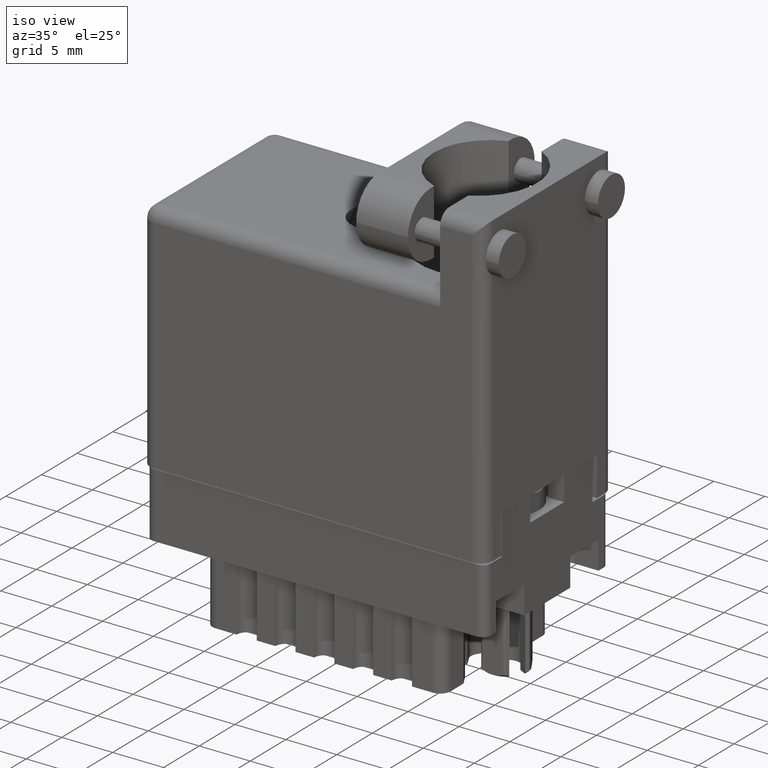
[diagram: clean part render]
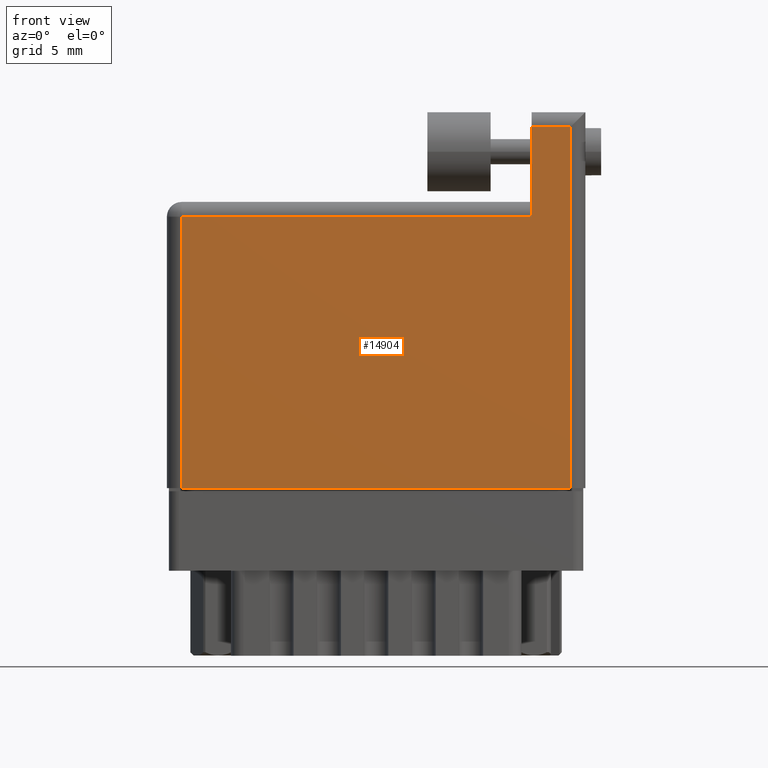
[diagram: tour spotlight — one face highlighted and labeled with its STEP entity id]
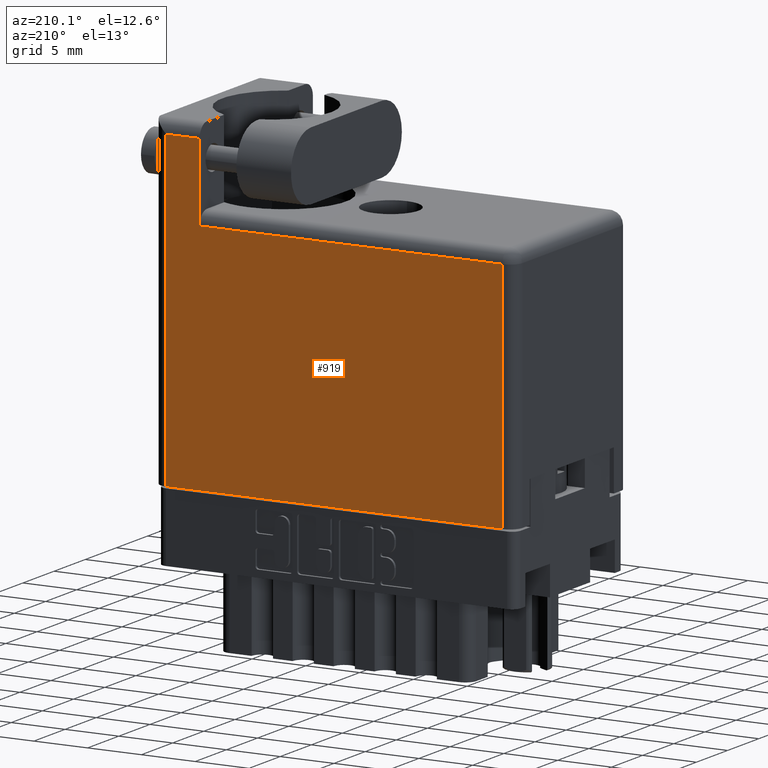
[diagram: tour spotlight — one face highlighted and labeled with its STEP entity id]
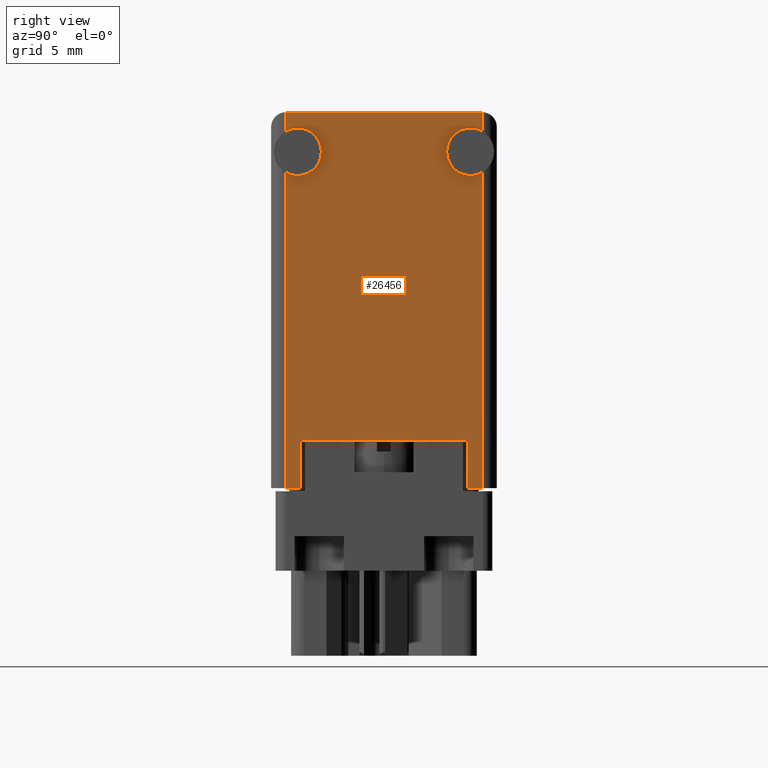
[diagram: tour spotlight — one face highlighted and labeled with its STEP entity id]
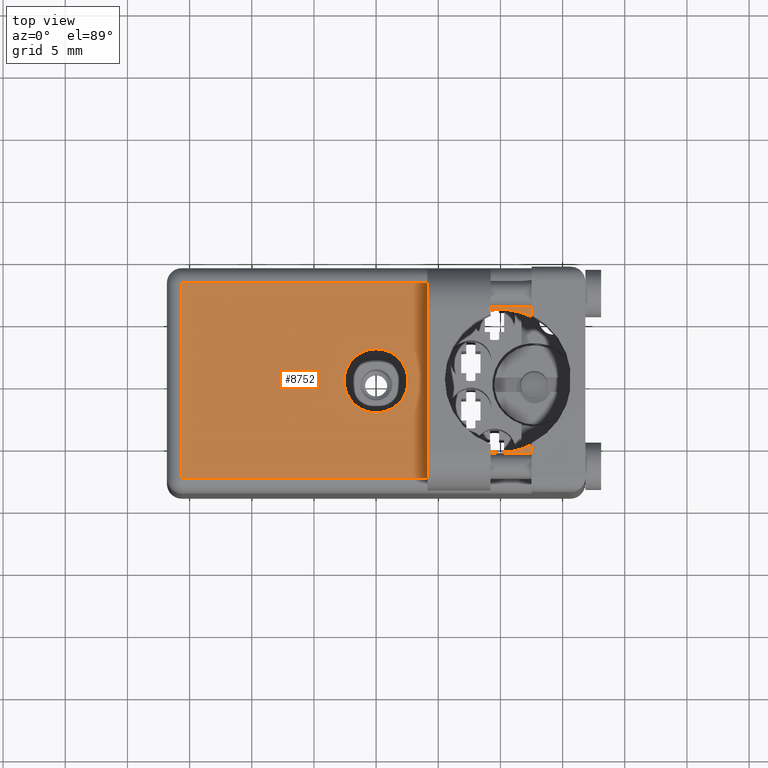
[diagram: tour spotlight — one face highlighted and labeled with its STEP entity id]
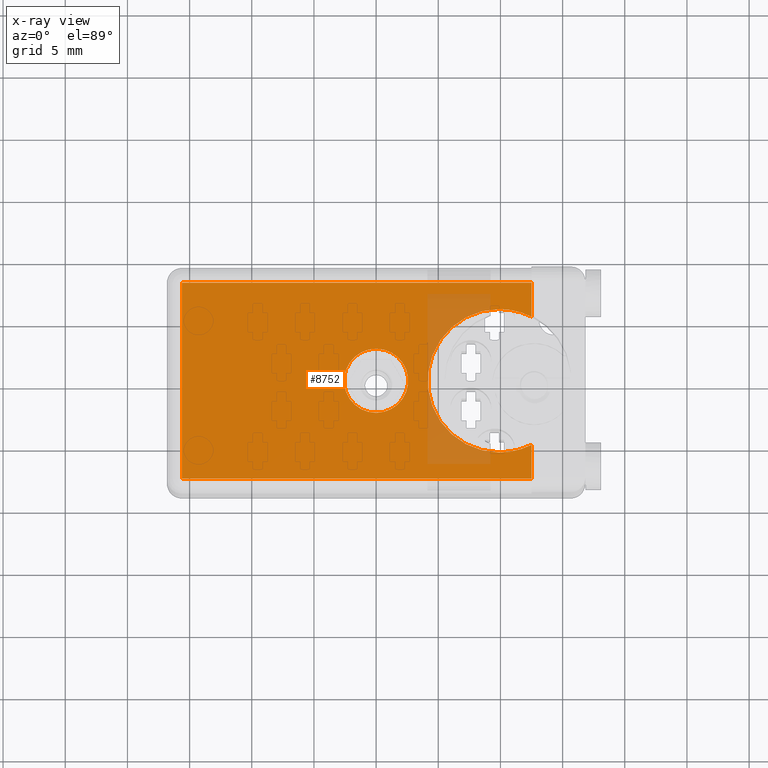
[diagram: x-ray of the same camera — body ghosted, this tour face saturated]
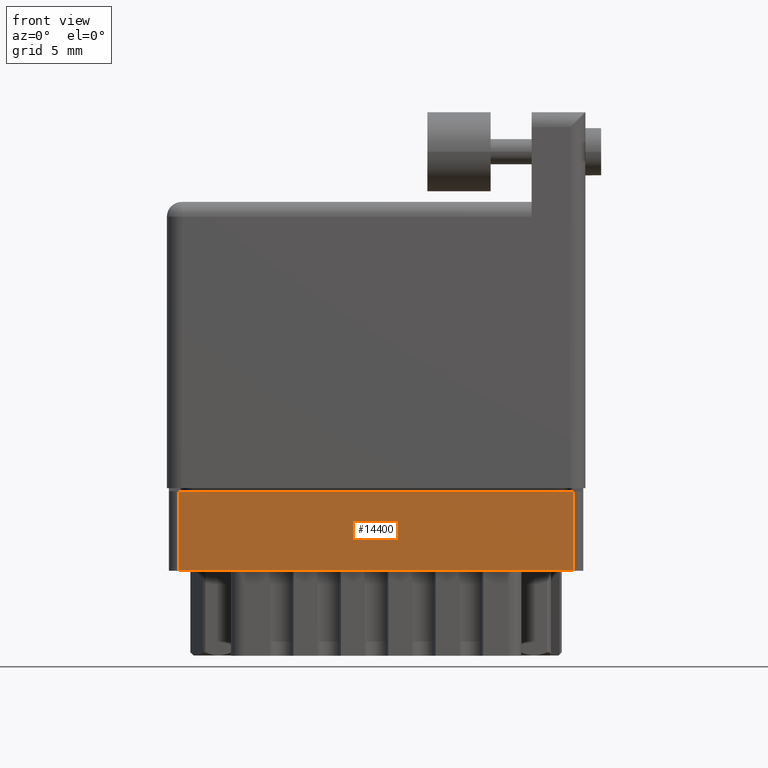
[diagram: tour spotlight — one face highlighted and labeled with its STEP entity id]
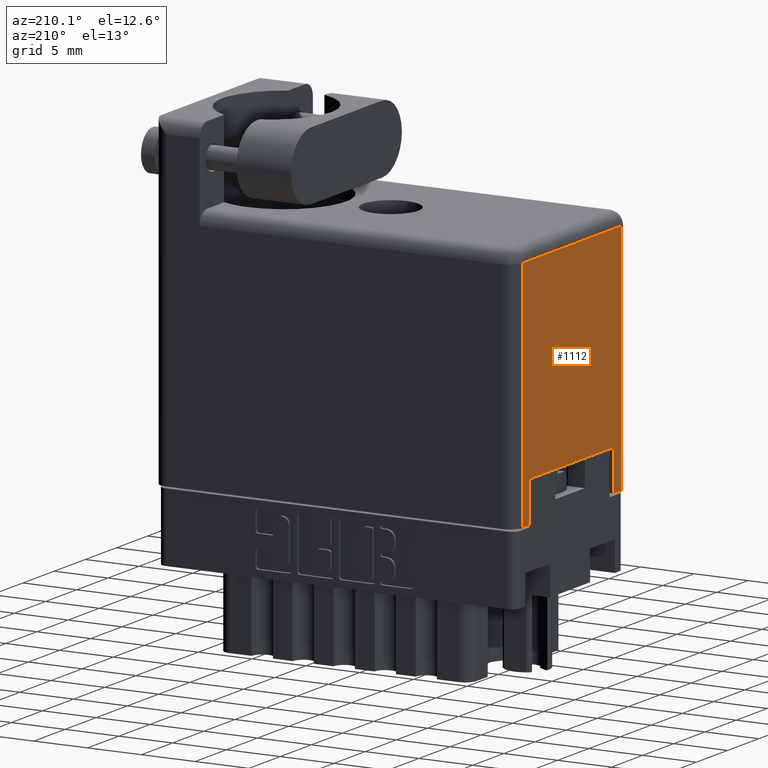
[diagram: tour spotlight — one face highlighted and labeled with its STEP entity id]
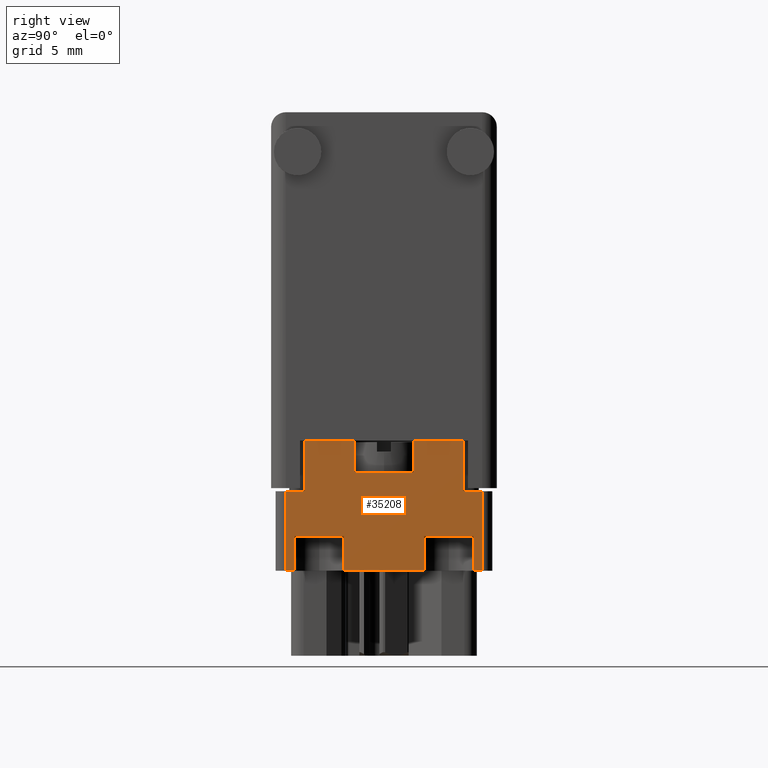
[diagram: tour spotlight — one face highlighted and labeled with its STEP entity id]
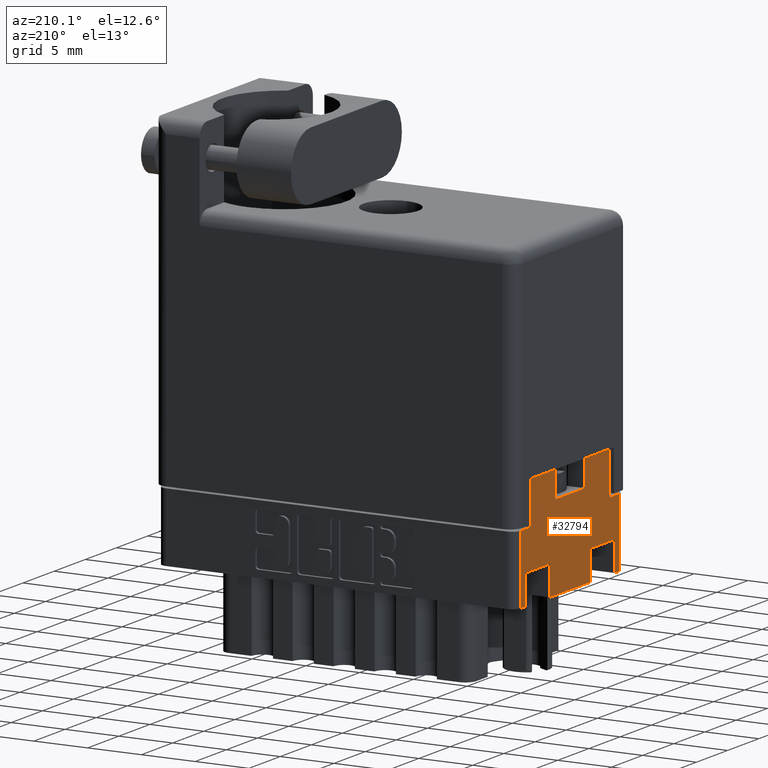
[diagram: tour spotlight — one face highlighted and labeled with its STEP entity id]
A machine part: a face-by-face anatomy tour. The part has 900 B-rep faces; the first image is the clean iso view, then the 8 largest visible faces are spotlighted one at a time (largest first), each with its STEP entity span.

Face 1 — front view, entity #14904. In plain terms, the highlighted planar face has unit normal (0, 1, -0).
Definition (entity closure, byte-faithful):
#64 = CARTESIAN_POINT ( 'NONE',  ( 0.0000000000000000000, 0.0000000000000000000, 0.0000000000000000000 ) ) ;
#103 = DIRECTION ( 'NONE',  ( 0.0000000000000000000, -1.000000000000000000, 0.0000000000000000000 ) ) ;
#1567 = CARTESIAN_POINT ( 'NONE',  ( 0.04700000000000006900, 0.0000000000000000000, 0.0000000000000000000 ) ) ;
#2125 = ORIENTED_EDGE ( 'NONE', *, *, #13101, .T. ) ;
#3009 = CARTESIAN_POINT ( 'NONE',  ( 1.155000000000000000, 1.189999999999999700, 6.829619984160658000E-017 ) ) ;
#3649 = VECTOR ( 'NONE', #11735, 39.37007874015748100 ) ;
#4244 = DIRECTION ( 'NONE',  ( -1.000000000000000000, 0.0000000000000000000, 0.0000000000000000000 ) ) ;
#4473 = VECTOR ( 'NONE', #22495, 39.37007874015748100 ) ;
#5046 = FACE_OUTER_BOUND ( 'NONE', #27770, .T. ) ;
#5056 = EDGE_CURVE ( 'NONE', #27941, #24178, #24931, .T. ) ;
#7647 = LINE ( 'NONE', #26916, #21984 ) ;
#8137 = CARTESIAN_POINT ( 'NONE',  ( 0.0000000000000000000, 0.9059999999999996900, 0.0000000000000000000 ) ) ;
#8495 = CARTESIAN_POINT ( 'NONE',  ( 1.277999999999999800, 1.189999999999999700, 0.0000000000000000000 ) ) ;
#9702 = ORIENTED_EDGE ( 'NONE', *, *, #5056, .T. ) ;
#11204 = ORIENTED_EDGE ( 'NONE', *, *, #25216, .T. ) ;
#11735 = DIRECTION ( 'NONE',  ( 0.0000000000000000000, 1.000000000000000000, 0.0000000000000000000 ) ) ;
#12269 = ORIENTED_EDGE ( 'NONE', *, *, #16501, .T. ) ;
#12934 = ORIENTED_EDGE ( 'NONE', *, *, #27459, .T. ) ;
#13092 = PLANE ( 'NONE',  #16830 ) ;
#13101 = EDGE_CURVE ( 'NONE', #27076, #27487, #22868, .T. ) ;
#14904 = ADVANCED_FACE ( 'NONE', ( #5046 ), #13092, .F. ) ;
#14937 = VECTOR ( 'NONE', #20998, 39.37007874015748100 ) ;
#16501 = EDGE_CURVE ( 'NONE', #24178, #27076, #19661, .T. ) ;
#16830 = AXIS2_PLACEMENT_3D ( 'NONE', #8137, #27766, #35904 ) ;
#17556 = CARTESIAN_POINT ( 'NONE',  ( 0.04700000000000006900, 0.0000000000000000000, 0.0000000000000000000 ) ) ;
#18659 = CARTESIAN_POINT ( 'NONE',  ( 0.04700000000000006900, 0.8590000000000001000, 0.0000000000000000000 ) ) ;
#19661 = LINE ( 'NONE', #19713, #4473 ) ;
#19670 = VECTOR ( 'NONE', #22270, 39.37007874015748100 ) ;
#19713 = CARTESIAN_POINT ( 'NONE',  ( 1.155000000000000000, 1.142999999999999600, 0.0000000000000000000 ) ) ;
#20998 = DIRECTION ( 'NONE',  ( 0.0000000000000000000, -1.000000000000000000, 0.0000000000000000000 ) ) ;
#21984 = VECTOR ( 'NONE', #4244, 39.37007874015748100 ) ;
#22033 = VECTOR ( 'NONE', #103, 39.37007874015748100 ) ;
#22270 = DIRECTION ( 'NONE',  ( 1.000000000000000000, 0.0000000000000000000, 0.0000000000000000000 ) ) ;
#22495 = DIRECTION ( 'NONE',  ( -1.000000000000000000, -0.0000000000000000000, -0.0000000000000000000 ) ) ;
#22868 = LINE ( 'NONE', #3009, #22033 ) ;
#23856 = CARTESIAN_POINT ( 'NONE',  ( 1.277999999999999800, 0.0000000000000000000, 0.0000000000000000000 ) ) ;
#24178 = VERTEX_POINT ( 'NONE', #28639 ) ;
#24498 = LINE ( 'NONE', #1567, #14937 ) ;
#24931 = LINE ( 'NONE', #8495, #3649 ) ;
#25216 = EDGE_CURVE ( 'NONE', #27869, #27941, #27063, .T. ) ;
#26321 = EDGE_CURVE ( 'NONE', #27487, #26717, #7647, .T. ) ;
#26717 = VERTEX_POINT ( 'NONE', #18659 ) ;
#26916 = CARTESIAN_POINT ( 'NONE',  ( 0.0000000000000000000, 0.8590000000000001000, 0.0000000000000000000 ) ) ;
#27063 = LINE ( 'NONE', #64, #19670 ) ;
#27076 = VERTEX_POINT ( 'NONE', #28544 ) ;
#27459 = EDGE_CURVE ( 'NONE', #26717, #27869, #24498, .T. ) ;
#27487 = VERTEX_POINT ( 'NONE', #31914 ) ;
#27766 = DIRECTION ( 'NONE',  ( 0.0000000000000000000, 0.0000000000000000000, -1.000000000000000000 ) ) ;
#27770 = EDGE_LOOP ( 'NONE', ( #11204, #9702, #12269, #2125, #28200, #12934 ) ) ;
#27869 = VERTEX_POINT ( 'NONE', #17556 ) ;
#27941 = VERTEX_POINT ( 'NONE', #23856 ) ;
#28200 = ORIENTED_EDGE ( 'NONE', *, *, #26321, .T. ) ;
#28544 = CARTESIAN_POINT ( 'NONE',  ( 1.155000000000000000, 1.142999999999999600, 6.829619984160658000E-017 ) ) ;
#28639 = CARTESIAN_POINT ( 'NONE',  ( 1.277999999999999800, 1.142999999999999600, 0.0000000000000000000 ) ) ;
#31914 = CARTESIAN_POINT ( 'NONE',  ( 1.155000000000000000, 0.8590000000000001000, 0.0000000000000000000 ) ) ;
#35904 = DIRECTION ( 'NONE',  ( -1.000000000000000000, 0.0000000000000000000, 0.0000000000000000000 ) ) ;

Face 2 — auxiliary view, entity #919. In plain terms, the highlighted planar face has unit normal (0, 1, -0).
Definition (entity closure, byte-faithful):
#100 = LINE ( 'NONE', #11593, #20940 ) ;
#919 = ADVANCED_FACE ( 'NONE', ( #17000 ), #1882, .T. ) ;
#1082 = AXIS2_PLACEMENT_3D ( 'NONE', #4688, #24078, #26872 ) ;
#1882 = PLANE ( 'NONE',  #1082 ) ;
#2681 = LINE ( 'NONE', #29164, #14822 ) ;
#2922 = EDGE_LOOP ( 'NONE', ( #7462, #30308, #18214, #9873, #7971, #24014 ) ) ;
#3687 = DIRECTION ( 'NONE',  ( -0.0000000000000000000, 1.000000000000000000, -0.0000000000000000000 ) ) ;
#4688 = CARTESIAN_POINT ( 'NONE',  ( 0.0000000000000000000, 0.9060000000000002500, -0.7150000000000001900 ) ) ;
#5653 = DIRECTION ( 'NONE',  ( 1.000000000000000000, -0.0000000000000000000, -0.0000000000000000000 ) ) ;
#5714 = LINE ( 'NONE', #11069, #19579 ) ;
#6447 = EDGE_CURVE ( 'NONE', #24117, #17199, #100, .T. ) ;
#6738 = EDGE_CURVE ( 'NONE', #29535, #19978, #2681, .T. ) ;
#7037 = VECTOR ( 'NONE', #25197, 39.37007874015748100 ) ;
#7113 = CARTESIAN_POINT ( 'NONE',  ( 1.277999999999999800, 3.209921392555509400E-015, -0.7149999999999999700 ) ) ;
#7462 = ORIENTED_EDGE ( 'NONE', *, *, #20479, .T. ) ;
#7971 = ORIENTED_EDGE ( 'NONE', *, *, #18040, .T. ) ;
#9067 = LINE ( 'NONE', #29814, #19461 ) ;
#9133 = VECTOR ( 'NONE', #5653, 39.37007874015748100 ) ;
#9873 = ORIENTED_EDGE ( 'NONE', *, *, #6447, .T. ) ;
#10081 = CARTESIAN_POINT ( 'NONE',  ( 1.277999999999999800, 1.143000000000000000, -0.7149999999999999700 ) ) ;
#11069 = CARTESIAN_POINT ( 'NONE',  ( 0.0000000000000000000, 3.209921392555509400E-015, -0.7149999999999999700 ) ) ;
#11593 = CARTESIAN_POINT ( 'NONE',  ( 0.04700000000000006900, 0.9060000000000002500, -0.7150000000000001900 ) ) ;
#13833 = DIRECTION ( 'NONE',  ( 1.000000000000000000, 0.0000000000000000000, 0.0000000000000000000 ) ) ;
#14822 = VECTOR ( 'NONE', #29036, 39.37007874015748100 ) ;
#14827 = LINE ( 'NONE', #33798, #7037 ) ;
#17000 = FACE_OUTER_BOUND ( 'NONE', #2922, .T. ) ;
#17199 = VERTEX_POINT ( 'NONE', #27776 ) ;
#18040 = EDGE_CURVE ( 'NONE', #17199, #25603, #14827, .T. ) ;
#18214 = ORIENTED_EDGE ( 'NONE', *, *, #30649, .F. ) ;
#18260 = LINE ( 'NONE', #25406, #9133 ) ;
#19461 = VECTOR ( 'NONE', #35290, 39.37007874015748100 ) ;
#19579 = VECTOR ( 'NONE', #13833, 39.37007874015748100 ) ;
#19799 = CARTESIAN_POINT ( 'NONE',  ( 0.04700000000000006900, 3.209921392555509400E-015, -0.7149999999999999700 ) ) ;
#19978 = VERTEX_POINT ( 'NONE', #7113 ) ;
#20479 = EDGE_CURVE ( 'NONE', #25936, #29535, #18260, .T. ) ;
#20940 = VECTOR ( 'NONE', #3687, 39.37007874015748100 ) ;
#24014 = ORIENTED_EDGE ( 'NONE', *, *, #35898, .F. ) ;
#24078 = DIRECTION ( 'NONE',  ( 0.0000000000000000000, 0.0000000000000000000, -1.000000000000000000 ) ) ;
#24117 = VERTEX_POINT ( 'NONE', #19799 ) ;
#25197 = DIRECTION ( 'NONE',  ( 1.000000000000000000, -0.0000000000000000000, -0.0000000000000000000 ) ) ;
#25406 = CARTESIAN_POINT ( 'NONE',  ( 0.0000000000000000000, 1.143000000000000000, -0.7149999999999999700 ) ) ;
#25603 = VERTEX_POINT ( 'NONE', #30245 ) ;
#25936 = VERTEX_POINT ( 'NONE', #30196 ) ;
#26872 = DIRECTION ( 'NONE',  ( -1.000000000000000000, 0.0000000000000000000, 0.0000000000000000000 ) ) ;
#27776 = CARTESIAN_POINT ( 'NONE',  ( 0.04700000000000006900, 0.8590000000000001000, -0.7150000000000001900 ) ) ;
#29036 = DIRECTION ( 'NONE',  ( -0.0000000000000000000, -1.000000000000000000, -0.0000000000000000000 ) ) ;
#29164 = CARTESIAN_POINT ( 'NONE',  ( 1.277999999999999800, 0.9060000000000002500, -0.7150000000000001900 ) ) ;
#29535 = VERTEX_POINT ( 'NONE', #10081 ) ;
#29814 = CARTESIAN_POINT ( 'NONE',  ( 1.155000000000000000, 1.189999999999999900, -0.7150000000000001900 ) ) ;
#30196 = CARTESIAN_POINT ( 'NONE',  ( 1.155000000000000000, 1.143000000000000000, -0.7150000000000001900 ) ) ;
#30245 = CARTESIAN_POINT ( 'NONE',  ( 1.155000000000000000, 0.8590000000000001000, -0.7150000000000001900 ) ) ;
#30308 = ORIENTED_EDGE ( 'NONE', *, *, #6738, .T. ) ;
#30649 = EDGE_CURVE ( 'NONE', #24117, #19978, #5714, .T. ) ;
#33798 = CARTESIAN_POINT ( 'NONE',  ( 0.0000000000000000000, 0.8590000000000001000, -0.7150000000000001900 ) ) ;
#35290 = DIRECTION ( 'NONE',  ( 0.0000000000000000000, -1.000000000000000000, 0.0000000000000000000 ) ) ;
#35898 = EDGE_CURVE ( 'NONE', #25936, #25603, #9067, .T. ) ;

Face 3 — right view, entity #26456. In plain terms, the highlighted planar face has unit normal (1, 0, 0).
Definition (entity closure, byte-faithful):
#215 = CIRCLE ( 'NONE', #29292, 0.07499999999999998300 ) ;
#267 = CARTESIAN_POINT ( 'NONE',  ( 1.325000000000000000, 3.209921392555509400E-015, -0.7149999999999999700 ) ) ;
#514 = EDGE_CURVE ( 'NONE', #26234, #8588, #27009, .T. ) ;
#570 = DIRECTION ( 'NONE',  ( 0.0000000000000000000, 0.0000000000000000000, -1.000000000000000000 ) ) ;
#651 = DIRECTION ( 'NONE',  ( 0.0000000000000000000, 1.000000000000000000, 0.0000000000000000000 ) ) ;
#731 = CARTESIAN_POINT ( 'NONE',  ( 1.325000000000000000, 3.209921392555509400E-015, -0.04700000000000000700 ) ) ;
#985 = AXIS2_PLACEMENT_3D ( 'NONE', #32879, #21716, #10329 ) ;
#1188 = EDGE_CURVE ( 'NONE', #28285, #12013, #22194, .T. ) ;
#1308 = VERTEX_POINT ( 'NONE', #10391 ) ;
#1706 = VECTOR ( 'NONE', #18977, 39.37007874015748100 ) ;
#1830 = CARTESIAN_POINT ( 'NONE',  ( 1.325000000000000000, 0.1500000000000016000, -0.09200000000000013700 ) ) ;
#2227 = CARTESIAN_POINT ( 'NONE',  ( 1.325000000000000000, 0.0000000000000000000, -0.6680000000000000400 ) ) ;
#2542 = LINE ( 'NONE', #1830, #35960 ) ;
#2779 = VERTEX_POINT ( 'NONE', #8423 ) ;
#3173 = ORIENTED_EDGE ( 'NONE', *, *, #10742, .F. ) ;
#3395 = VECTOR ( 'NONE', #16362, 39.37007874015748100 ) ;
#3725 = FACE_OUTER_BOUND ( 'NONE', #14104, .T. ) ;
#4551 = CARTESIAN_POINT ( 'NONE',  ( 1.325000000000000000, 3.209921392555509400E-015, -0.7149999999999999700 ) ) ;
#4677 = DIRECTION ( 'NONE',  ( 0.0000000000000000000, 0.0000000000000000000, 1.000000000000000000 ) ) ;
#4801 = DIRECTION ( 'NONE',  ( -0.0000000000000000000, -1.000000000000000000, -0.0000000000000000000 ) ) ;
#4878 = CARTESIAN_POINT ( 'NONE',  ( 1.325000000000000000, 1.189999999999999700, 0.0000000000000000000 ) ) ;
#5701 = DIRECTION ( 'NONE',  ( 1.000000000000000000, 0.0000000000000000000, 0.0000000000000000000 ) ) ;
#5812 = CARTESIAN_POINT ( 'NONE',  ( 1.325000000000000000, 1.064999999999999700, -0.5560000000000001600 ) ) ;
#6843 = CARTESIAN_POINT ( 'NONE',  ( 1.325000000000000000, 3.209921392555509400E-015, -0.04700000000000000700 ) ) ;
#6871 = EDGE_CURVE ( 'NONE', #17466, #28005, #16984, .T. ) ;
#7004 = CARTESIAN_POINT ( 'NONE',  ( 1.325000000000000000, 3.209921392555509400E-015, -0.04699999999999993800 ) ) ;
#7346 = ORIENTED_EDGE ( 'NONE', *, *, #12712, .T. ) ;
#7535 = DIRECTION ( 'NONE',  ( 0.0000000000000000000, 1.000000000000000000, 0.0000000000000000000 ) ) ;
#8195 = ORIENTED_EDGE ( 'NONE', *, *, #27594, .F. ) ;
#8423 = CARTESIAN_POINT ( 'NONE',  ( 1.325000000000000000, 3.209921392555509400E-015, -0.6230000000000000000 ) ) ;
#8556 = CARTESIAN_POINT ( 'NONE',  ( 1.325000000000000000, 3.209921392555509400E-015, -0.7149999999999999700 ) ) ;
#8588 = VERTEX_POINT ( 'NONE', #35824 ) ;
#8684 = LINE ( 'NONE', #2227, #1706 ) ;
#8833 = VECTOR ( 'NONE', #25894, 39.37007874015748100 ) ;
#9020 = DIRECTION ( 'NONE',  ( 0.0000000000000000000, 0.0000000000000000000, 1.000000000000000000 ) ) ;
#9395 = VERTEX_POINT ( 'NONE', #9610 ) ;
#9610 = CARTESIAN_POINT ( 'NONE',  ( 1.325000000000000000, 0.1500000000000016000, -0.6230000000000000000 ) ) ;
#10084 = VECTOR ( 'NONE', #4677, 39.37007874015748100 ) ;
#10329 = DIRECTION ( 'NONE',  ( 0.0000000000000000000, 0.0000000000000000000, -1.000000000000000000 ) ) ;
#10391 = CARTESIAN_POINT ( 'NONE',  ( 1.325000000000000000, 0.1500000000000016000, -0.09200000000000013700 ) ) ;
#10742 = EDGE_CURVE ( 'NONE', #29784, #8588, #33008, .T. ) ;
#11104 = ORIENTED_EDGE ( 'NONE', *, *, #514, .T. ) ;
#11117 = CARTESIAN_POINT ( 'NONE',  ( 1.325000000000000000, 1.189999999999999900, -0.6680000000000000400 ) ) ;
#12013 = VERTEX_POINT ( 'NONE', #19819 ) ;
#12293 = CARTESIAN_POINT ( 'NONE',  ( 1.325000000000000000, 0.1500000000000016000, -0.6230000000000000000 ) ) ;
#12585 = CARTESIAN_POINT ( 'NONE',  ( 1.325000000000000000, 0.0000000000000000000, -0.09200000000000013700 ) ) ;
#12712 = EDGE_CURVE ( 'NONE', #17466, #1308, #2542, .T. ) ;
#12871 = ORIENTED_EDGE ( 'NONE', *, *, #16463, .T. ) ;
#13415 = CARTESIAN_POINT ( 'NONE',  ( 1.325000000000000000, 0.9997619742787992000, -0.04700000000000000700 ) ) ;
#13650 = CARTESIAN_POINT ( 'NONE',  ( 1.325000000000000000, 1.064999999999999900, -0.1589999999999998400 ) ) ;
#14104 = EDGE_LOOP ( 'NONE', ( #11104, #3173, #8195, #29783, #24768, #30576, #33655, #16055, #26388, #15778, #7346, #12871, #20123, #28339 ) ) ;
#14408 = DIRECTION ( 'NONE',  ( 1.000000000000000000, 0.0000000000000000000, 0.0000000000000000000 ) ) ;
#15778 = ORIENTED_EDGE ( 'NONE', *, *, #6871, .F. ) ;
#16055 = ORIENTED_EDGE ( 'NONE', *, *, #23891, .F. ) ;
#16362 = DIRECTION ( 'NONE',  ( 0.0000000000000000000, 0.0000000000000000000, -1.000000000000000000 ) ) ;
#16463 = EDGE_CURVE ( 'NONE', #1308, #9395, #20068, .T. ) ;
#16614 = EDGE_CURVE ( 'NONE', #17834, #28005, #21417, .T. ) ;
#16920 = CARTESIAN_POINT ( 'NONE',  ( 1.325000000000000000, 0.1500000000000016000, -0.6230000000000000000 ) ) ;
#16955 = CARTESIAN_POINT ( 'NONE',  ( 1.325000000000000000, 1.064999999999999900, -0.08399999999999983900 ) ) ;
#16984 = LINE ( 'NONE', #4551, #10084 ) ;
#17466 = VERTEX_POINT ( 'NONE', #12585 ) ;
#17834 = VERTEX_POINT ( 'NONE', #13415 ) ;
#18977 = DIRECTION ( 'NONE',  ( 0.0000000000000000000, 1.000000000000000000, 0.0000000000000000000 ) ) ;
#19099 = DIRECTION ( 'NONE',  ( 1.000000000000000000, 0.0000000000000000000, 0.0000000000000000000 ) ) ;
#19746 = VECTOR ( 'NONE', #9020, 39.37007874015748100 ) ;
#19819 = CARTESIAN_POINT ( 'NONE',  ( 1.325000000000000000, 1.130238025721200100, -0.04700000000000000700 ) ) ;
#20068 = LINE ( 'NONE', #16920, #27052 ) ;
#20123 = ORIENTED_EDGE ( 'NONE', *, *, #28563, .T. ) ;
#20368 = CARTESIAN_POINT ( 'NONE',  ( 1.325000000000000000, 0.0000000000000000000, -0.6680000000000000400 ) ) ;
#20815 = CARTESIAN_POINT ( 'NONE',  ( 1.325000000000000000, 1.064999999999999900, -0.08399999999999983900 ) ) ;
#21417 = LINE ( 'NONE', #731, #31820 ) ;
#21716 = DIRECTION ( 'NONE',  ( 1.000000000000000000, 0.0000000000000000000, 0.0000000000000000000 ) ) ;
#21887 = CIRCLE ( 'NONE', #985, 0.07500000000000002500 ) ;
#22194 = CIRCLE ( 'NONE', #23399, 0.07499999999999998300 ) ;
#22891 = CARTESIAN_POINT ( 'NONE',  ( 1.325000000000000000, 1.189999999999999700, -0.04699999999999993800 ) ) ;
#23399 = AXIS2_PLACEMENT_3D ( 'NONE', #20815, #32089, #31972 ) ;
#23891 = EDGE_CURVE ( 'NONE', #17834, #28285, #215, .T. ) ;
#24041 = EDGE_CURVE ( 'NONE', #26234, #2779, #26685, .T. ) ;
#24269 = LINE ( 'NONE', #4878, #3395 ) ;
#24768 = ORIENTED_EDGE ( 'NONE', *, *, #35434, .F. ) ;
#25039 = DIRECTION ( 'NONE',  ( 0.0000000000000000000, 0.0000000000000000000, -1.000000000000000000 ) ) ;
#25163 = PLANE ( 'NONE',  #32380 ) ;
#25222 = DIRECTION ( 'NONE',  ( 0.0000000000000000000, 0.0000000000000000000, -1.000000000000000000 ) ) ;
#25356 = CARTESIAN_POINT ( 'NONE',  ( 1.325000000000000000, 1.064999999999999700, -0.6310000000000002300 ) ) ;
#25504 = AXIS2_PLACEMENT_3D ( 'NONE', #25356, #14408, #570 ) ;
#25894 = DIRECTION ( 'NONE',  ( 0.0000000000000000000, -1.000000000000000000, 0.0000000000000000000 ) ) ;
#26008 = VERTEX_POINT ( 'NONE', #22891 ) ;
#26234 = VERTEX_POINT ( 'NONE', #20368 ) ;
#26388 = ORIENTED_EDGE ( 'NONE', *, *, #16614, .T. ) ;
#26456 = ADVANCED_FACE ( 'NONE', ( #3725 ), #25163, .T. ) ;
#26685 = LINE ( 'NONE', #267, #19746 ) ;
#26999 = VERTEX_POINT ( 'NONE', #11117 ) ;
#27009 = LINE ( 'NONE', #28439, #34382 ) ;
#27052 = VECTOR ( 'NONE', #28309, 39.37007874015748100 ) ;
#27483 = VECTOR ( 'NONE', #4801, 39.37007874015748100 ) ;
#27594 = EDGE_CURVE ( 'NONE', #30206, #29784, #21887, .T. ) ;
#27892 = LINE ( 'NONE', #12293, #8833 ) ;
#28005 = VERTEX_POINT ( 'NONE', #7004 ) ;
#28285 = VERTEX_POINT ( 'NONE', #13650 ) ;
#28309 = DIRECTION ( 'NONE',  ( 0.0000000000000000000, 0.0000000000000000000, -1.000000000000000000 ) ) ;
#28339 = ORIENTED_EDGE ( 'NONE', *, *, #24041, .F. ) ;
#28439 = CARTESIAN_POINT ( 'NONE',  ( 1.325000000000000000, 0.0000000000000000000, -0.6680000000000000400 ) ) ;
#28563 = EDGE_CURVE ( 'NONE', #9395, #2779, #27892, .T. ) ;
#28715 = EDGE_CURVE ( 'NONE', #26008, #12013, #34881, .T. ) ;
#29292 = AXIS2_PLACEMENT_3D ( 'NONE', #16955, #5701, #25222 ) ;
#29783 = ORIENTED_EDGE ( 'NONE', *, *, #35120, .T. ) ;
#29784 = VERTEX_POINT ( 'NONE', #5812 ) ;
#30206 = VERTEX_POINT ( 'NONE', #31579 ) ;
#30460 = DIRECTION ( 'NONE',  ( -0.0000000000000000000, -1.000000000000000000, -0.0000000000000000000 ) ) ;
#30576 = ORIENTED_EDGE ( 'NONE', *, *, #28715, .T. ) ;
#31579 = CARTESIAN_POINT ( 'NONE',  ( 1.325000000000000000, 1.130238025721200400, -0.6680000000000000400 ) ) ;
#31820 = VECTOR ( 'NONE', #30460, 39.37007874015748100 ) ;
#31972 = DIRECTION ( 'NONE',  ( 0.0000000000000000000, 0.0000000000000000000, -1.000000000000000000 ) ) ;
#32089 = DIRECTION ( 'NONE',  ( 1.000000000000000000, 0.0000000000000000000, 0.0000000000000000000 ) ) ;
#32380 = AXIS2_PLACEMENT_3D ( 'NONE', #8556, #19099, #25039 ) ;
#32879 = CARTESIAN_POINT ( 'NONE',  ( 1.325000000000000000, 1.064999999999999700, -0.6310000000000002300 ) ) ;
#33008 = CIRCLE ( 'NONE', #25504, 0.07500000000000002500 ) ;
#33655 = ORIENTED_EDGE ( 'NONE', *, *, #1188, .F. ) ;
#34382 = VECTOR ( 'NONE', #651, 39.37007874015748100 ) ;
#34881 = LINE ( 'NONE', #6843, #27483 ) ;
#35120 = EDGE_CURVE ( 'NONE', #30206, #26999, #8684, .T. ) ;
#35434 = EDGE_CURVE ( 'NONE', #26008, #26999, #24269, .T. ) ;
#35824 = CARTESIAN_POINT ( 'NONE',  ( 1.325000000000000000, 0.9997619742787995400, -0.6680000000000000400 ) ) ;
#35960 = VECTOR ( 'NONE', #7535, 39.37007874015748100 ) ;

Face 4 — top view, entity #8752. An x-ray twin of the same camera follows (body ghosted, this face saturated) — the face is partly hidden behind the body. In plain terms, the highlighted planar face has unit normal (0, 0, 1).
Definition (entity closure, byte-faithful):
#126 = LINE ( 'NONE', #30103, #28766 ) ;
#1007 = EDGE_CURVE ( 'NONE', #30003, #33445, #21755, .T. ) ;
#1283 = ORIENTED_EDGE ( 'NONE', *, *, #5355, .F. ) ;
#1852 = ORIENTED_EDGE ( 'NONE', *, *, #16594, .F. ) ;
#1897 = ORIENTED_EDGE ( 'NONE', *, *, #30353, .F. ) ;
#2376 = DIRECTION ( 'NONE',  ( 0.0000000000000000000, 1.000000000000000000, 0.0000000000000000000 ) ) ;
#2491 = AXIS2_PLACEMENT_3D ( 'NONE', #10734, #11328, #33528 ) ;
#2797 = EDGE_LOOP ( 'NONE', ( #1852, #34831, #13339, #8393, #32783, #13409, #13379, #34064 ) ) ;
#3066 = LINE ( 'NONE', #32992, #35230 ) ;
#3554 = VERTEX_POINT ( 'NONE', #9099 ) ;
#4318 = VERTEX_POINT ( 'NONE', #22581 ) ;
#5133 = VERTEX_POINT ( 'NONE', #19744 ) ;
#5355 = EDGE_CURVE ( 'NONE', #15288, #13515, #28353, .T. ) ;
#5797 = EDGE_CURVE ( 'NONE', #33684, #5133, #10568, .T. ) ;
#5862 = DIRECTION ( 'NONE',  ( 0.0000000000000000000, 1.000000000000000000, 0.0000000000000000000 ) ) ;
#7277 = CARTESIAN_POINT ( 'NONE',  ( 1.155000000000000000, 0.9059999999999996900, -0.04700000000000000700 ) ) ;
#8393 = ORIENTED_EDGE ( 'NONE', *, *, #22835, .T. ) ;
#8752 = ADVANCED_FACE ( 'NONE', ( #13292, #24159 ), #11195, .T. ) ;
#8915 = DIRECTION ( 'NONE',  ( 0.0000000000000000000, 1.000000000000000000, 0.0000000000000000000 ) ) ;
#9099 = CARTESIAN_POINT ( 'NONE',  ( 0.04700000000000006900, 0.9059999999999996900, -0.04700000000000000700 ) ) ;
#9232 = CARTESIAN_POINT ( 'NONE',  ( 0.0000000000000000000, 0.9060000000000002500, -0.6680000000000000400 ) ) ;
#9724 = EDGE_CURVE ( 'NONE', #11136, #3554, #3066, .T. ) ;
#9999 = EDGE_CURVE ( 'NONE', #33445, #4318, #10931, .T. ) ;
#10312 = LINE ( 'NONE', #7277, #16336 ) ;
#10568 = CIRCLE ( 'NONE', #16075, 0.2270000000000000100 ) ;
#10734 = CARTESIAN_POINT ( 'NONE',  ( 1.052999999999999900, 0.9059999999999998100, -0.3574999999999999800 ) ) ;
#10931 = LINE ( 'NONE', #19964, #24361 ) ;
#11049 = AXIS2_PLACEMENT_3D ( 'NONE', #16997, #5862, #25150 ) ;
#11136 = VERTEX_POINT ( 'NONE', #24975 ) ;
#11195 = PLANE ( 'NONE',  #11049 ) ;
#11328 = DIRECTION ( 'NONE',  ( 0.0000000000000000000, 1.000000000000000000, 0.0000000000000000000 ) ) ;
#12009 = DIRECTION ( 'NONE',  ( -1.000000000000000000, 0.0000000000000000000, 0.0000000000000000000 ) ) ;
#13120 = CARTESIAN_POINT ( 'NONE',  ( 0.6624999999999999800, 0.9059999999999998100, -0.3574999999999999800 ) ) ;
#13292 = FACE_OUTER_BOUND ( 'NONE', #2797, .T. ) ;
#13339 = ORIENTED_EDGE ( 'NONE', *, *, #9724, .T. ) ;
#13359 = DIRECTION ( 'NONE',  ( 0.0000000000000000000, 0.0000000000000000000, 1.000000000000000000 ) ) ;
#13379 = ORIENTED_EDGE ( 'NONE', *, *, #21588, .F. ) ;
#13409 = ORIENTED_EDGE ( 'NONE', *, *, #1007, .F. ) ;
#13481 = DIRECTION ( 'NONE',  ( 0.0000000000000000000, 0.0000000000000000000, 1.000000000000000000 ) ) ;
#13505 = VECTOR ( 'NONE', #12009, 39.37007874015748100 ) ;
#13515 = VERTEX_POINT ( 'NONE', #29918 ) ;
#13790 = CARTESIAN_POINT ( 'NONE',  ( 1.155000000000000000, 0.9059999999999998100, -0.5602929979067323700 ) ) ;
#14498 = DIRECTION ( 'NONE',  ( 0.0000000000000000000, 0.0000000000000000000, 1.000000000000000000 ) ) ;
#15288 = VERTEX_POINT ( 'NONE', #25804 ) ;
#16075 = AXIS2_PLACEMENT_3D ( 'NONE', #28075, #8915, #28184 ) ;
#16336 = VECTOR ( 'NONE', #32635, 39.37007874015748100 ) ;
#16347 = DIRECTION ( 'NONE',  ( 0.0000000000000000000, 0.0000000000000000000, 1.000000000000000000 ) ) ;
#16594 = EDGE_CURVE ( 'NONE', #35368, #33684, #126, .T. ) ;
#16622 = AXIS2_PLACEMENT_3D ( 'NONE', #13120, #32435, #13359 ) ;
#16997 = CARTESIAN_POINT ( 'NONE',  ( 0.0000000000000000000, 0.9060000000000002500, -0.7150000000000001900 ) ) ;
#18042 = DIRECTION ( 'NONE',  ( 0.0000000000000000000, 1.000000000000000000, 0.0000000000000000000 ) ) ;
#18579 = EDGE_LOOP ( 'NONE', ( #1283, #1897 ) ) ;
#19146 = CARTESIAN_POINT ( 'NONE',  ( 1.155000000000000000, 0.9060000000000001400, -0.1547070020932643500 ) ) ;
#19744 = CARTESIAN_POINT ( 'NONE',  ( 1.052999999999999900, 0.9059999999999998100, -0.5845000000000000200 ) ) ;
#19964 = CARTESIAN_POINT ( 'NONE',  ( 1.155000000000000000, 0.9059999999999996900, 6.829619984160658000E-017 ) ) ;
#20915 = LINE ( 'NONE', #9232, #13505 ) ;
#21588 = EDGE_CURVE ( 'NONE', #5133, #30003, #34230, .T. ) ;
#21755 = CIRCLE ( 'NONE', #2491, 0.2270000000000000100 ) ;
#21803 = AXIS2_PLACEMENT_3D ( 'NONE', #30624, #2376, #35858 ) ;
#22581 = CARTESIAN_POINT ( 'NONE',  ( 1.155000000000000000, 0.9059999999999996900, -0.04700000000000000700 ) ) ;
#22835 = EDGE_CURVE ( 'NONE', #3554, #4318, #10312, .T. ) ;
#23041 = CIRCLE ( 'NONE', #16622, 0.1014999999999999900 ) ;
#23228 = AXIS2_PLACEMENT_3D ( 'NONE', #23975, #18042, #35045 ) ;
#23975 = CARTESIAN_POINT ( 'NONE',  ( 0.6624999999999999800, 0.9059999999999998100, -0.3574999999999999800 ) ) ;
#24020 = CARTESIAN_POINT ( 'NONE',  ( 1.155000000000000000, 0.9060000000000002500, -0.6680000000000000400 ) ) ;
#24159 = FACE_BOUND ( 'NONE', #18579, .T. ) ;
#24361 = VECTOR ( 'NONE', #14498, 39.37007874015748100 ) ;
#24975 = CARTESIAN_POINT ( 'NONE',  ( 0.04700000000000006900, 0.9060000000000002500, -0.6680000000000000400 ) ) ;
#25150 = DIRECTION ( 'NONE',  ( 0.0000000000000000000, 0.0000000000000000000, 1.000000000000000000 ) ) ;
#25804 = CARTESIAN_POINT ( 'NONE',  ( 0.6624999999999999800, 0.9059999999999998100, -0.2560000000000000100 ) ) ;
#28066 = CARTESIAN_POINT ( 'NONE',  ( 1.052999999999999900, 0.9059999999999998100, -0.1305000000000000000 ) ) ;
#28075 = CARTESIAN_POINT ( 'NONE',  ( 1.052999999999999900, 0.9059999999999998100, -0.3574999999999999800 ) ) ;
#28184 = DIRECTION ( 'NONE',  ( 0.0000000000000000000, 0.0000000000000000000, 1.000000000000000000 ) ) ;
#28353 = CIRCLE ( 'NONE', #23228, 0.1014999999999999900 ) ;
#28766 = VECTOR ( 'NONE', #13481, 39.37007874015748100 ) ;
#29426 = EDGE_CURVE ( 'NONE', #35368, #11136, #20915, .T. ) ;
#29918 = CARTESIAN_POINT ( 'NONE',  ( 0.6624999999999999800, 0.9059999999999998100, -0.4590000000000000200 ) ) ;
#30003 = VERTEX_POINT ( 'NONE', #28066 ) ;
#30103 = CARTESIAN_POINT ( 'NONE',  ( 1.155000000000000000, 0.9059999999999996900, 6.829619984160658000E-017 ) ) ;
#30353 = EDGE_CURVE ( 'NONE', #13515, #15288, #23041, .T. ) ;
#30624 = CARTESIAN_POINT ( 'NONE',  ( 1.052999999999999900, 0.9059999999999998100, -0.3574999999999999800 ) ) ;
#32435 = DIRECTION ( 'NONE',  ( 0.0000000000000000000, 1.000000000000000000, 0.0000000000000000000 ) ) ;
#32635 = DIRECTION ( 'NONE',  ( 1.000000000000000000, -0.0000000000000000000, -0.0000000000000000000 ) ) ;
#32783 = ORIENTED_EDGE ( 'NONE', *, *, #9999, .F. ) ;
#32992 = CARTESIAN_POINT ( 'NONE',  ( 0.04700000000000006900, 0.9060000000000002500, -0.7150000000000001900 ) ) ;
#33445 = VERTEX_POINT ( 'NONE', #19146 ) ;
#33528 = DIRECTION ( 'NONE',  ( 0.0000000000000000000, 0.0000000000000000000, 1.000000000000000000 ) ) ;
#33684 = VERTEX_POINT ( 'NONE', #13790 ) ;
#34064 = ORIENTED_EDGE ( 'NONE', *, *, #5797, .F. ) ;
#34230 = CIRCLE ( 'NONE', #21803, 0.2270000000000000100 ) ;
#34831 = ORIENTED_EDGE ( 'NONE', *, *, #29426, .T. ) ;
#35045 = DIRECTION ( 'NONE',  ( 0.0000000000000000000, 0.0000000000000000000, 1.000000000000000000 ) ) ;
#35230 = VECTOR ( 'NONE', #16347, 39.37007874015748100 ) ;
#35368 = VERTEX_POINT ( 'NONE', #24020 ) ;
#35858 = DIRECTION ( 'NONE',  ( 0.0000000000000000000, 0.0000000000000000000, 1.000000000000000000 ) ) ;

Face 5 — front view, entity #14400. In plain terms, the highlighted planar face has unit normal (0, -1, 0).
Definition (entity closure, byte-faithful):
#1115 = EDGE_LOOP ( 'NONE', ( #5393, #24775, #6668, #3140 ) ) ;
#1555 = FACE_OUTER_BOUND ( 'NONE', #1115, .T. ) ;
#2896 = LINE ( 'NONE', #31543, #17661 ) ;
#3140 = ORIENTED_EDGE ( 'NONE', *, *, #32876, .T. ) ;
#4957 = VERTEX_POINT ( 'NONE', #35788 ) ;
#5393 = ORIENTED_EDGE ( 'NONE', *, *, #34705, .F. ) ;
#6668 = ORIENTED_EDGE ( 'NONE', *, *, #10362, .F. ) ;
#8437 = CARTESIAN_POINT ( 'NONE',  ( 0.0000000000000000000, -0.3430000000000001400, -0.2770000000000000200 ) ) ;
#8670 = VERTEX_POINT ( 'NONE', #27333 ) ;
#9124 = LINE ( 'NONE', #8437, #34758 ) ;
#9264 = DIRECTION ( 'NONE',  ( -0.0000000000000000000, 0.0000000000000000000, 1.000000000000000000 ) ) ;
#10362 = EDGE_CURVE ( 'NONE', #4957, #21141, #26940, .T. ) ;
#11659 = DIRECTION ( 'NONE',  ( 0.0000000000000000000, -1.000000000000000000, 0.0000000000000000000 ) ) ;
#13499 = CARTESIAN_POINT ( 'NONE',  ( 0.0000000000000000000, -0.3430000000000001400, -0.5290000000000000300 ) ) ;
#14400 = ADVANCED_FACE ( 'NONE', ( #1555 ), #28383, .T. ) ;
#15541 = LINE ( 'NONE', #29021, #23790 ) ;
#15653 = VECTOR ( 'NONE', #32948, 39.37007874015748100 ) ;
#17231 = CARTESIAN_POINT ( 'NONE',  ( -0.6560000000000001400, -0.3430000000000001400, -0.7980000000000000400 ) ) ;
#17584 = DIRECTION ( 'NONE',  ( -0.0000000000000000000, -0.0000000000000000000, -1.000000000000000000 ) ) ;
#17661 = VECTOR ( 'NONE', #17584, 39.37007874015748100 ) ;
#19701 = VERTEX_POINT ( 'NONE', #19737 ) ;
#19737 = CARTESIAN_POINT ( 'NONE',  ( -0.6240000000000002200, -0.3430000000000001400, -0.2770000000000000200 ) ) ;
#21141 = VERTEX_POINT ( 'NONE', #31382 ) ;
#22580 = EDGE_CURVE ( 'NONE', #19701, #21141, #2896, .T. ) ;
#23790 = VECTOR ( 'NONE', #9264, 39.37007874015748100 ) ;
#24775 = ORIENTED_EDGE ( 'NONE', *, *, #22580, .T. ) ;
#26940 = LINE ( 'NONE', #13499, #15653 ) ;
#27333 = CARTESIAN_POINT ( 'NONE',  ( 0.6239999999999997800, -0.3430000000000001400, -0.2770000000000000200 ) ) ;
#27713 = DIRECTION ( 'NONE',  ( 1.000000000000000000, 0.0000000000000000000, 0.0000000000000000000 ) ) ;
#28383 = PLANE ( 'NONE',  #29855 ) ;
#29021 = CARTESIAN_POINT ( 'NONE',  ( 0.6239999999999997800, -0.3430000000000001400, -0.7980000000000000400 ) ) ;
#29855 = AXIS2_PLACEMENT_3D ( 'NONE', #17231, #11659, #31073 ) ;
#31073 = DIRECTION ( 'NONE',  ( 0.0000000000000000000, -0.0000000000000000000, -1.000000000000000000 ) ) ;
#31382 = CARTESIAN_POINT ( 'NONE',  ( -0.6240000000000002200, -0.3430000000000001400, -0.5290000000000000300 ) ) ;
#31543 = CARTESIAN_POINT ( 'NONE',  ( -0.6240000000000002200, -0.3430000000000001400, -0.7980000000000000400 ) ) ;
#32876 = EDGE_CURVE ( 'NONE', #4957, #8670, #15541, .T. ) ;
#32948 = DIRECTION ( 'NONE',  ( -1.000000000000000000, 0.0000000000000000000, 0.0000000000000000000 ) ) ;
#34705 = EDGE_CURVE ( 'NONE', #19701, #8670, #9124, .T. ) ;
#34758 = VECTOR ( 'NONE', #27713, 39.37007874015748100 ) ;
#35788 = CARTESIAN_POINT ( 'NONE',  ( 0.6239999999999997800, -0.3430000000000001400, -0.5290000000000000300 ) ) ;

Face 6 — auxiliary view, entity #1112. In plain terms, the highlighted planar face has unit normal (-1, 0, 0).
Definition (entity closure, byte-faithful):
#888 = CARTESIAN_POINT ( 'NONE',  ( 0.0000000000000000000, 3.209921392555509400E-015, -0.7149999999999999700 ) ) ;
#922 = DIRECTION ( 'NONE',  ( 0.0000000000000000000, 0.0000000000000000000, 1.000000000000000000 ) ) ;
#1088 = LINE ( 'NONE', #10252, #26304 ) ;
#1112 = ADVANCED_FACE ( 'NONE', ( #35650 ), #14859, .T. ) ;
#1788 = LINE ( 'NONE', #3111, #30423 ) ;
#1846 = ORIENTED_EDGE ( 'NONE', *, *, #17351, .T. ) ;
#1988 = CARTESIAN_POINT ( 'NONE',  ( 0.0000000000000000000, 0.1500000000000016000, -0.6230000000000000000 ) ) ;
#3111 = CARTESIAN_POINT ( 'NONE',  ( 0.0000000000000000000, 0.1500000000000016000, -0.09200000000000013700 ) ) ;
#3483 = DIRECTION ( 'NONE',  ( 0.0000000000000000000, 0.0000000000000000000, 1.000000000000000000 ) ) ;
#3514 = EDGE_CURVE ( 'NONE', #22658, #4008, #14768, .T. ) ;
#3821 = DIRECTION ( 'NONE',  ( 0.0000000000000000000, -1.000000000000000000, 0.0000000000000000000 ) ) ;
#4008 = VERTEX_POINT ( 'NONE', #30766 ) ;
#4562 = VERTEX_POINT ( 'NONE', #9253 ) ;
#4891 = CARTESIAN_POINT ( 'NONE',  ( 0.0000000000000000000, 3.209921392555509400E-015, -0.6230000000000000000 ) ) ;
#6208 = AXIS2_PLACEMENT_3D ( 'NONE', #888, #25905, #9294 ) ;
#6673 = ORIENTED_EDGE ( 'NONE', *, *, #18463, .F. ) ;
#6687 = EDGE_LOOP ( 'NONE', ( #15823, #13829, #28096, #14912, #6673, #33749, #1846, #10174 ) ) ;
#7377 = VECTOR ( 'NONE', #922, 39.37007874015748100 ) ;
#7578 = DIRECTION ( 'NONE',  ( 0.0000000000000000000, 0.0000000000000000000, -1.000000000000000000 ) ) ;
#8292 = CARTESIAN_POINT ( 'NONE',  ( 0.0000000000000000000, 0.0000000000000000000, -0.6680000000000000400 ) ) ;
#8513 = EDGE_CURVE ( 'NONE', #30132, #8720, #1088, .T. ) ;
#8720 = VERTEX_POINT ( 'NONE', #8292 ) ;
#9253 = CARTESIAN_POINT ( 'NONE',  ( 0.0000000000000000000, 0.1500000000000016000, -0.6230000000000000000 ) ) ;
#9294 = DIRECTION ( 'NONE',  ( 0.0000000000000000000, 0.0000000000000000000, 1.000000000000000000 ) ) ;
#9561 = VERTEX_POINT ( 'NONE', #4891 ) ;
#10001 = VECTOR ( 'NONE', #25819, 39.37007874015748100 ) ;
#10002 = VECTOR ( 'NONE', #3483, 39.37007874015748100 ) ;
#10174 = ORIENTED_EDGE ( 'NONE', *, *, #3514, .T. ) ;
#10252 = CARTESIAN_POINT ( 'NONE',  ( 0.0000000000000000000, 0.0000000000000000000, -0.6680000000000000400 ) ) ;
#13133 = LINE ( 'NONE', #29620, #23964 ) ;
#13829 = ORIENTED_EDGE ( 'NONE', *, *, #8513, .T. ) ;
#14605 = CARTESIAN_POINT ( 'NONE',  ( 0.0000000000000000000, 0.1500000000000016000, -0.6230000000000000000 ) ) ;
#14768 = LINE ( 'NONE', #34074, #10001 ) ;
#14859 = PLANE ( 'NONE',  #6208 ) ;
#14912 = ORIENTED_EDGE ( 'NONE', *, *, #18152, .F. ) ;
#15823 = ORIENTED_EDGE ( 'NONE', *, *, #28862, .T. ) ;
#16571 = VECTOR ( 'NONE', #3821, 39.37007874015748100 ) ;
#17351 = EDGE_CURVE ( 'NONE', #29370, #22658, #23859, .T. ) ;
#17377 = EDGE_CURVE ( 'NONE', #8720, #9561, #19547, .T. ) ;
#17559 = CARTESIAN_POINT ( 'NONE',  ( 0.0000000000000000000, 3.209921392555509400E-015, -0.7149999999999999700 ) ) ;
#18152 = EDGE_CURVE ( 'NONE', #4562, #9561, #29176, .T. ) ;
#18463 = EDGE_CURVE ( 'NONE', #28581, #4562, #19596, .T. ) ;
#18498 = DIRECTION ( 'NONE',  ( 0.0000000000000000000, -1.000000000000000000, 0.0000000000000000000 ) ) ;
#18685 = CARTESIAN_POINT ( 'NONE',  ( 0.0000000000000000000, 3.209921392555509400E-015, -0.04699999999999993800 ) ) ;
#19547 = LINE ( 'NONE', #34309, #10002 ) ;
#19596 = LINE ( 'NONE', #1988, #24799 ) ;
#19730 = EDGE_CURVE ( 'NONE', #29370, #28581, #1788, .T. ) ;
#20872 = CARTESIAN_POINT ( 'NONE',  ( 0.0000000000000000000, 0.0000000000000000000, -0.09200000000000013700 ) ) ;
#22658 = VERTEX_POINT ( 'NONE', #18685 ) ;
#23859 = LINE ( 'NONE', #17559, #7377 ) ;
#23964 = VECTOR ( 'NONE', #29383, 39.37007874015748100 ) ;
#24799 = VECTOR ( 'NONE', #7578, 39.37007874015748100 ) ;
#25819 = DIRECTION ( 'NONE',  ( -0.0000000000000000000, 1.000000000000000000, -0.0000000000000000000 ) ) ;
#25905 = DIRECTION ( 'NONE',  ( -1.000000000000000000, 0.0000000000000000000, 0.0000000000000000000 ) ) ;
#26304 = VECTOR ( 'NONE', #18498, 39.37007874015748100 ) ;
#27753 = DIRECTION ( 'NONE',  ( 0.0000000000000000000, 1.000000000000000000, 0.0000000000000000000 ) ) ;
#28096 = ORIENTED_EDGE ( 'NONE', *, *, #17377, .T. ) ;
#28581 = VERTEX_POINT ( 'NONE', #34761 ) ;
#28862 = EDGE_CURVE ( 'NONE', #4008, #30132, #13133, .T. ) ;
#29176 = LINE ( 'NONE', #14605, #16571 ) ;
#29370 = VERTEX_POINT ( 'NONE', #20872 ) ;
#29383 = DIRECTION ( 'NONE',  ( -0.0000000000000000000, -0.0000000000000000000, -1.000000000000000000 ) ) ;
#29620 = CARTESIAN_POINT ( 'NONE',  ( 0.0000000000000000000, 0.8590000000000001000, -0.7150000000000001900 ) ) ;
#30132 = VERTEX_POINT ( 'NONE', #34247 ) ;
#30423 = VECTOR ( 'NONE', #27753, 39.37007874015748100 ) ;
#30766 = CARTESIAN_POINT ( 'NONE',  ( 0.0000000000000000000, 0.8590000000000001000, -0.04700000000000000700 ) ) ;
#33749 = ORIENTED_EDGE ( 'NONE', *, *, #19730, .F. ) ;
#34074 = CARTESIAN_POINT ( 'NONE',  ( 0.0000000000000000000, 0.9059999999999996900, -0.04700000000000000700 ) ) ;
#34247 = CARTESIAN_POINT ( 'NONE',  ( 0.0000000000000000000, 0.8590000000000001000, -0.6680000000000000400 ) ) ;
#34309 = CARTESIAN_POINT ( 'NONE',  ( 0.0000000000000000000, 3.209921392555509400E-015, -0.7149999999999999700 ) ) ;
#34761 = CARTESIAN_POINT ( 'NONE',  ( 0.0000000000000000000, 0.1500000000000016000, -0.09200000000000013700 ) ) ;
#35650 = FACE_OUTER_BOUND ( 'NONE', #6687, .T. ) ;

Face 7 — right view, entity #35208. In plain terms, the highlighted planar face has unit normal (1, 0, 0).
Definition (entity closure, byte-faithful):
#17 = VECTOR ( 'NONE', #12357, 39.37007874015748100 ) ;
#52 = DIRECTION ( 'NONE',  ( -0.0000000000000000000, -0.0000000000000000000, 1.000000000000000000 ) ) ;
#60 = DIRECTION ( 'NONE',  ( 0.0000000000000000000, -0.0000000000000000000, 1.000000000000000000 ) ) ;
#1692 = ORIENTED_EDGE ( 'NONE', *, *, #10101, .F. ) ;
#2013 = EDGE_CURVE ( 'NONE', #31509, #28419, #3453, .T. ) ;
#2066 = CARTESIAN_POINT ( 'NONE',  ( 0.6559999999999999200, -0.09350000000000004100, -0.1169999999999999900 ) ) ;
#2148 = DIRECTION ( 'NONE',  ( 0.0000000000000000000, -0.0000000000000000000, 1.000000000000000000 ) ) ;
#2193 = CARTESIAN_POINT ( 'NONE',  ( 0.6559999999999999200, 0.2499999999999999700, -0.1169999999999999900 ) ) ;
#2241 = VERTEX_POINT ( 'NONE', #34028 ) ;
#2278 = EDGE_CURVE ( 'NONE', #7249, #16216, #4734, .T. ) ;
#2408 = LINE ( 'NONE', #33187, #30167 ) ;
#2746 = VECTOR ( 'NONE', #2148, 39.37007874015748100 ) ;
#2919 = VERTEX_POINT ( 'NONE', #31318 ) ;
#3453 = LINE ( 'NONE', #8226, #31245 ) ;
#3512 = DIRECTION ( 'NONE',  ( 0.0000000000000000000, -1.000000000000000000, 0.0000000000000000000 ) ) ;
#4182 = LINE ( 'NONE', #16737, #35004 ) ;
#4232 = EDGE_CURVE ( 'NONE', #22689, #30854, #2408, .T. ) ;
#4263 = CARTESIAN_POINT ( 'NONE',  ( 0.6559999999999999200, -0.3110000000000001100, -0.2770000000000000200 ) ) ;
#4269 = PLANE ( 'NONE',  #19605 ) ;
#4435 = CARTESIAN_POINT ( 'NONE',  ( 0.6559999999999999200, 0.0000000000000000000, -0.5290000000000000300 ) ) ;
#4509 = CARTESIAN_POINT ( 'NONE',  ( 0.6559999999999999200, -0.3430000000000001400, -0.7980000000000000400 ) ) ;
#4734 = LINE ( 'NONE', #6610, #18157 ) ;
#4753 = ORIENTED_EDGE ( 'NONE', *, *, #30507, .F. ) ;
#4803 = CARTESIAN_POINT ( 'NONE',  ( 0.6559999999999999200, 0.2829999999999999700, -0.4200000000000001000 ) ) ;
#5064 = LINE ( 'NONE', #20713, #26754 ) ;
#5452 = EDGE_CURVE ( 'NONE', #23750, #11013, #33164, .T. ) ;
#5685 = EDGE_CURVE ( 'NONE', #23935, #17042, #8851, .T. ) ;
#5789 = CARTESIAN_POINT ( 'NONE',  ( 0.6559999999999999200, -0.1269999999999999700, -0.5290000000000000300 ) ) ;
#6036 = EDGE_CURVE ( 'NONE', #27730, #6904, #31824, .T. ) ;
#6103 = ORIENTED_EDGE ( 'NONE', *, *, #4232, .T. ) ;
#6211 = CARTESIAN_POINT ( 'NONE',  ( 0.6559999999999999200, 0.0000000000000000000, -0.2770000000000000200 ) ) ;
#6610 = CARTESIAN_POINT ( 'NONE',  ( 0.6559999999999999200, -0.3110000000000001100, -0.7980000000000000400 ) ) ;
#6904 = VERTEX_POINT ( 'NONE', #4803 ) ;
#6924 = EDGE_CURVE ( 'NONE', #23935, #30854, #23950, .T. ) ;
#7161 = CARTESIAN_POINT ( 'NONE',  ( 0.6559999999999999200, 0.3429999999999998600, -0.1169999999999999900 ) ) ;
#7223 = EDGE_CURVE ( 'NONE', #31509, #23750, #27811, .T. ) ;
#7249 = VERTEX_POINT ( 'NONE', #4263 ) ;
#7961 = CARTESIAN_POINT ( 'NONE',  ( 0.6559999999999999200, 0.2829999999999999700, -0.7980000000000000400 ) ) ;
#8193 = EDGE_CURVE ( 'NONE', #2919, #2241, #4182, .T. ) ;
#8199 = CARTESIAN_POINT ( 'NONE',  ( 0.6559999999999999200, 0.0000000000000000000, -0.2770000000000000200 ) ) ;
#8226 = CARTESIAN_POINT ( 'NONE',  ( 0.6559999999999999200, 0.09349999999999997200, -0.7980000000000000400 ) ) ;
#8256 = VECTOR ( 'NONE', #10455, 39.37007874015748100 ) ;
#8851 = LINE ( 'NONE', #27836, #16636 ) ;
#9001 = EDGE_LOOP ( 'NONE', ( #4753, #6103, #15454, #23431, #35982, #11278, #15076, #22125, #1692, #35820, #14677, #31422, #28819, #15357, #10080, #12806, #9945, #17195, #17463, #12700 ) ) ;
#9227 = CARTESIAN_POINT ( 'NONE',  ( 0.6559999999999999200, -0.2830000000000000300, -0.4200000000000001000 ) ) ;
#9548 = LINE ( 'NONE', #4435, #10438 ) ;
#9945 = ORIENTED_EDGE ( 'NONE', *, *, #22172, .F. ) ;
#10080 = ORIENTED_EDGE ( 'NONE', *, *, #29836, .T. ) ;
#10101 = EDGE_CURVE ( 'NONE', #2241, #11013, #33490, .T. ) ;
#10438 = VECTOR ( 'NONE', #21050, 39.37007874015748100 ) ;
#10440 = EDGE_CURVE ( 'NONE', #7249, #2919, #16514, .T. ) ;
#10455 = DIRECTION ( 'NONE',  ( -0.0000000000000000000, 1.000000000000000000, -0.0000000000000000000 ) ) ;
#10718 = CARTESIAN_POINT ( 'NONE',  ( 0.6559999999999999200, 0.0000000000000000000, -0.5290000000000000300 ) ) ;
#10906 = EDGE_CURVE ( 'NONE', #28419, #17042, #15616, .T. ) ;
#11013 = VERTEX_POINT ( 'NONE', #2066 ) ;
#11278 = ORIENTED_EDGE ( 'NONE', *, *, #2013, .F. ) ;
#12357 = DIRECTION ( 'NONE',  ( 0.0000000000000000000, 0.0000000000000000000, -1.000000000000000000 ) ) ;
#12503 = DIRECTION ( 'NONE',  ( 0.0000000000000000000, 0.0000000000000000000, -1.000000000000000000 ) ) ;
#12600 = CARTESIAN_POINT ( 'NONE',  ( 0.6559999999999999200, 0.3109999999999997800, -0.5290000000000000300 ) ) ;
#12700 = ORIENTED_EDGE ( 'NONE', *, *, #20336, .T. ) ;
#12806 = ORIENTED_EDGE ( 'NONE', *, *, #30842, .T. ) ;
#13023 = VECTOR ( 'NONE', #16430, 39.37007874015748100 ) ;
#13866 = DIRECTION ( 'NONE',  ( 0.0000000000000000000, 0.0000000000000000000, 1.000000000000000000 ) ) ;
#14153 = CARTESIAN_POINT ( 'NONE',  ( 0.6559999999999999200, -0.3430000000000001400, -0.4200000000000001000 ) ) ;
#14677 = ORIENTED_EDGE ( 'NONE', *, *, #10440, .F. ) ;
#14910 = CARTESIAN_POINT ( 'NONE',  ( 0.6559999999999999200, 0.3109999999999997800, -0.2770000000000000200 ) ) ;
#15076 = ORIENTED_EDGE ( 'NONE', *, *, #7223, .T. ) ;
#15357 = ORIENTED_EDGE ( 'NONE', *, *, #23213, .F. ) ;
#15454 = ORIENTED_EDGE ( 'NONE', *, *, #6924, .F. ) ;
#15616 = LINE ( 'NONE', #7161, #8256 ) ;
#15645 = LINE ( 'NONE', #7961, #13023 ) ;
#15954 = CARTESIAN_POINT ( 'NONE',  ( 0.6559999999999999200, 0.09349999999999997200, -0.2170000000000000000 ) ) ;
#16216 = VERTEX_POINT ( 'NONE', #24665 ) ;
#16430 = DIRECTION ( 'NONE',  ( 0.0000000000000000000, 0.0000000000000000000, -1.000000000000000000 ) ) ;
#16514 = LINE ( 'NONE', #8199, #22593 ) ;
#16636 = VECTOR ( 'NONE', #52, 39.37007874015748100 ) ;
#16706 = CARTESIAN_POINT ( 'NONE',  ( 0.6559999999999999200, 0.1269999999999999700, -0.4200000000000001000 ) ) ;
#16737 = CARTESIAN_POINT ( 'NONE',  ( 0.6559999999999999200, -0.2500000000000000600, -0.2770000000000000200 ) ) ;
#17042 = VERTEX_POINT ( 'NONE', #2193 ) ;
#17195 = ORIENTED_EDGE ( 'NONE', *, *, #26768, .F. ) ;
#17394 = CARTESIAN_POINT ( 'NONE',  ( 0.6559999999999999200, 0.09349999999999997200, -0.1169999999999999900 ) ) ;
#17397 = VECTOR ( 'NONE', #3512, 39.37007874015748100 ) ;
#17463 = ORIENTED_EDGE ( 'NONE', *, *, #6036, .T. ) ;
#17674 = CARTESIAN_POINT ( 'NONE',  ( 0.6559999999999999200, -0.1269999999999999700, -0.4200000000000001000 ) ) ;
#18046 = LINE ( 'NONE', #23851, #25830 ) ;
#18067 = CARTESIAN_POINT ( 'NONE',  ( 0.6559999999999999200, 0.1269999999999999700, -0.5290000000000000300 ) ) ;
#18157 = VECTOR ( 'NONE', #25896, 39.37007874015748100 ) ;
#18342 = VECTOR ( 'NONE', #28104, 39.37007874015748100 ) ;
#18844 = DIRECTION ( 'NONE',  ( 0.0000000000000000000, -1.000000000000000000, 0.0000000000000000000 ) ) ;
#19511 = CARTESIAN_POINT ( 'NONE',  ( 0.6559999999999999200, 0.2499999999999999700, -0.2770000000000000200 ) ) ;
#19605 = AXIS2_PLACEMENT_3D ( 'NONE', #4509, #29113, #12503 ) ;
#20336 = EDGE_CURVE ( 'NONE', #6904, #32694, #15645, .T. ) ;
#20387 = CARTESIAN_POINT ( 'NONE',  ( 0.6559999999999999200, -0.3430000000000001400, -0.2170000000000000300 ) ) ;
#20420 = LINE ( 'NONE', #28725, #17 ) ;
#20713 = CARTESIAN_POINT ( 'NONE',  ( 0.6559999999999999200, -0.2830000000000000300, -0.7980000000000000400 ) ) ;
#20826 = DIRECTION ( 'NONE',  ( 0.0000000000000000000, 0.0000000000000000000, -1.000000000000000000 ) ) ;
#21050 = DIRECTION ( 'NONE',  ( 0.0000000000000000000, -1.000000000000000000, 0.0000000000000000000 ) ) ;
#21231 = VERTEX_POINT ( 'NONE', #17674 ) ;
#21386 = CARTESIAN_POINT ( 'NONE',  ( 0.6559999999999999200, 0.0000000000000000000, -0.5290000000000000300 ) ) ;
#21437 = CARTESIAN_POINT ( 'NONE',  ( 0.6559999999999999200, -0.09350000000000004100, -0.7980000000000000400 ) ) ;
#22125 = ORIENTED_EDGE ( 'NONE', *, *, #5452, .T. ) ;
#22172 = EDGE_CURVE ( 'NONE', #32224, #25143, #35061, .T. ) ;
#22593 = VECTOR ( 'NONE', #30123, 39.37007874015748100 ) ;
#22689 = VERTEX_POINT ( 'NONE', #12600 ) ;
#22856 = VECTOR ( 'NONE', #18844, 39.37007874015748100 ) ;
#23213 = EDGE_CURVE ( 'NONE', #30945, #23639, #5064, .T. ) ;
#23431 = ORIENTED_EDGE ( 'NONE', *, *, #5685, .T. ) ;
#23639 = VERTEX_POINT ( 'NONE', #26130 ) ;
#23750 = VERTEX_POINT ( 'NONE', #31956 ) ;
#23851 = CARTESIAN_POINT ( 'NONE',  ( 0.6559999999999999200, 0.1269999999999999700, -0.7980000000000000400 ) ) ;
#23935 = VERTEX_POINT ( 'NONE', #19511 ) ;
#23950 = LINE ( 'NONE', #6211, #34359 ) ;
#24362 = VECTOR ( 'NONE', #24410, 39.37007874015748100 ) ;
#24410 = DIRECTION ( 'NONE',  ( 0.0000000000000000000, -1.000000000000000000, 0.0000000000000000000 ) ) ;
#24665 = CARTESIAN_POINT ( 'NONE',  ( 0.6559999999999999200, -0.3110000000000001100, -0.5290000000000000300 ) ) ;
#25143 = VERTEX_POINT ( 'NONE', #5789 ) ;
#25362 = DIRECTION ( 'NONE',  ( -0.0000000000000000000, -0.0000000000000000000, 1.000000000000000000 ) ) ;
#25830 = VECTOR ( 'NONE', #32241, 39.37007874015748100 ) ;
#25896 = DIRECTION ( 'NONE',  ( 0.0000000000000000000, -0.0000000000000000000, -1.000000000000000000 ) ) ;
#26085 = VECTOR ( 'NONE', #28682, 39.37007874015748100 ) ;
#26130 = CARTESIAN_POINT ( 'NONE',  ( 0.6559999999999999200, -0.2830000000000000300, -0.5290000000000000300 ) ) ;
#26754 = VECTOR ( 'NONE', #20826, 39.37007874015748100 ) ;
#26768 = EDGE_CURVE ( 'NONE', #27730, #32224, #18046, .T. ) ;
#27730 = VERTEX_POINT ( 'NONE', #16706 ) ;
#27811 = LINE ( 'NONE', #20387, #17397 ) ;
#27830 = LINE ( 'NONE', #21386, #24362 ) ;
#27836 = CARTESIAN_POINT ( 'NONE',  ( 0.6559999999999999200, 0.2499999999999999700, -0.2770000000000000200 ) ) ;
#28104 = DIRECTION ( 'NONE',  ( -0.0000000000000000000, 1.000000000000000000, 0.0000000000000000000 ) ) ;
#28263 = DIRECTION ( 'NONE',  ( 0.0000000000000000000, 1.000000000000000000, -0.0000000000000000000 ) ) ;
#28419 = VERTEX_POINT ( 'NONE', #17394 ) ;
#28682 = DIRECTION ( 'NONE',  ( -0.0000000000000000000, 1.000000000000000000, -0.0000000000000000000 ) ) ;
#28725 = CARTESIAN_POINT ( 'NONE',  ( 0.6559999999999999200, -0.1269999999999999700, -0.7980000000000000400 ) ) ;
#28819 = ORIENTED_EDGE ( 'NONE', *, *, #35017, .F. ) ;
#29113 = DIRECTION ( 'NONE',  ( 1.000000000000000000, 0.0000000000000000000, 0.0000000000000000000 ) ) ;
#29637 = DIRECTION ( 'NONE',  ( -0.0000000000000000000, 1.000000000000000000, 0.0000000000000000000 ) ) ;
#29836 = EDGE_CURVE ( 'NONE', #30945, #21231, #33072, .T. ) ;
#30068 = VECTOR ( 'NONE', #29637, 39.37007874015748100 ) ;
#30123 = DIRECTION ( 'NONE',  ( 0.0000000000000000000, 1.000000000000000000, -0.0000000000000000000 ) ) ;
#30167 = VECTOR ( 'NONE', #13866, 39.37007874015748100 ) ;
#30507 = EDGE_CURVE ( 'NONE', #22689, #32694, #27830, .T. ) ;
#30616 = CARTESIAN_POINT ( 'NONE',  ( 0.6559999999999999200, 0.2829999999999999700, -0.5290000000000000300 ) ) ;
#30842 = EDGE_CURVE ( 'NONE', #21231, #25143, #20420, .T. ) ;
#30854 = VERTEX_POINT ( 'NONE', #14910 ) ;
#30945 = VERTEX_POINT ( 'NONE', #9227 ) ;
#31219 = FACE_OUTER_BOUND ( 'NONE', #9001, .T. ) ;
#31245 = VECTOR ( 'NONE', #60, 39.37007874015748100 ) ;
#31318 = CARTESIAN_POINT ( 'NONE',  ( 0.6559999999999999200, -0.2500000000000000600, -0.2770000000000000200 ) ) ;
#31422 = ORIENTED_EDGE ( 'NONE', *, *, #2278, .T. ) ;
#31489 = CARTESIAN_POINT ( 'NONE',  ( 0.6559999999999999200, 0.3429999999999998600, -0.1169999999999999900 ) ) ;
#31509 = VERTEX_POINT ( 'NONE', #15954 ) ;
#31824 = LINE ( 'NONE', #34875, #30068 ) ;
#31956 = CARTESIAN_POINT ( 'NONE',  ( 0.6559999999999999200, -0.09350000000000002800, -0.2170000000000000000 ) ) ;
#32224 = VERTEX_POINT ( 'NONE', #18067 ) ;
#32241 = DIRECTION ( 'NONE',  ( 0.0000000000000000000, 0.0000000000000000000, -1.000000000000000000 ) ) ;
#32694 = VERTEX_POINT ( 'NONE', #30616 ) ;
#33072 = LINE ( 'NONE', #14153, #18342 ) ;
#33164 = LINE ( 'NONE', #21437, #2746 ) ;
#33187 = CARTESIAN_POINT ( 'NONE',  ( 0.6559999999999999200, 0.3109999999999997800, -0.7980000000000000400 ) ) ;
#33490 = LINE ( 'NONE', #31489, #26085 ) ;
#34028 = CARTESIAN_POINT ( 'NONE',  ( 0.6559999999999999200, -0.2500000000000000600, -0.1169999999999999900 ) ) ;
#34359 = VECTOR ( 'NONE', #28263, 39.37007874015748100 ) ;
#34875 = CARTESIAN_POINT ( 'NONE',  ( 0.6559999999999999200, -0.3430000000000001400, -0.4200000000000001000 ) ) ;
#35004 = VECTOR ( 'NONE', #25362, 39.37007874015748100 ) ;
#35017 = EDGE_CURVE ( 'NONE', #23639, #16216, #9548, .T. ) ;
#35061 = LINE ( 'NONE', #10718, #22856 ) ;
#35208 = ADVANCED_FACE ( 'NONE', ( #31219 ), #4269, .T. ) ;
#35820 = ORIENTED_EDGE ( 'NONE', *, *, #8193, .F. ) ;
#35982 = ORIENTED_EDGE ( 'NONE', *, *, #10906, .F. ) ;

Face 8 — auxiliary view, entity #32794. In plain terms, the highlighted planar face has unit normal (-1, 0, 0).
Definition (entity closure, byte-faithful):
#278 = DIRECTION ( 'NONE',  ( -1.000000000000000000, 0.0000000000000000000, 0.0000000000000000000 ) ) ;
#407 = CARTESIAN_POINT ( 'NONE',  ( -0.6560000000000001400, -0.09350000000000018000, -0.2170000000000000000 ) ) ;
#488 = CARTESIAN_POINT ( 'NONE',  ( -0.6560000000000001400, -0.2500000000000000600, -0.1169999999999999900 ) ) ;
#1245 = CARTESIAN_POINT ( 'NONE',  ( -0.6560000000000001400, 0.2499999999999999700, -0.2770000000000000200 ) ) ;
#1584 = VERTEX_POINT ( 'NONE', #19794 ) ;
#1654 = DIRECTION ( 'NONE',  ( 0.0000000000000000000, 0.0000000000000000000, -1.000000000000000000 ) ) ;
#1815 = LINE ( 'NONE', #24189, #19189 ) ;
#1870 = DIRECTION ( 'NONE',  ( 0.0000000000000000000, 1.000000000000000000, 0.0000000000000000000 ) ) ;
#2005 = CARTESIAN_POINT ( 'NONE',  ( -0.6560000000000001400, 0.3109999999999997800, -0.7980000000000000400 ) ) ;
#2048 = ORIENTED_EDGE ( 'NONE', *, *, #10485, .T. ) ;
#2313 = LINE ( 'NONE', #28311, #16610 ) ;
#2404 = DIRECTION ( 'NONE',  ( 0.0000000000000000000, 0.0000000000000000000, -1.000000000000000000 ) ) ;
#2539 = FACE_OUTER_BOUND ( 'NONE', #12186, .T. ) ;
#2745 = DIRECTION ( 'NONE',  ( 0.0000000000000000000, 0.0000000000000000000, -1.000000000000000000 ) ) ;
#2820 = CARTESIAN_POINT ( 'NONE',  ( -0.6560000000000001400, 0.09349999999999983300, -0.7980000000000000400 ) ) ;
#2835 = VECTOR ( 'NONE', #14683, 39.37007874015748100 ) ;
#2945 = DIRECTION ( 'NONE',  ( 0.0000000000000000000, -1.000000000000000000, 0.0000000000000000000 ) ) ;
#3002 = EDGE_CURVE ( 'NONE', #16518, #8797, #18995, .T. ) ;
#3005 = LINE ( 'NONE', #34360, #23395 ) ;
#3474 = AXIS2_PLACEMENT_3D ( 'NONE', #25286, #278, #30738 ) ;
#3520 = CARTESIAN_POINT ( 'NONE',  ( -0.6560000000000001400, -0.3430000000000001400, -0.2170000000000000300 ) ) ;
#3680 = CARTESIAN_POINT ( 'NONE',  ( -0.6560000000000001400, -0.3110000000000001100, -0.7980000000000000400 ) ) ;
#3770 = ORIENTED_EDGE ( 'NONE', *, *, #31977, .F. ) ;
#3881 = VECTOR ( 'NONE', #1654, 39.37007874015748100 ) ;
#3947 = EDGE_CURVE ( 'NONE', #19589, #27516, #15881, .T. ) ;
#3985 = DIRECTION ( 'NONE',  ( 0.0000000000000000000, 0.0000000000000000000, -1.000000000000000000 ) ) ;
#4302 = DIRECTION ( 'NONE',  ( 0.0000000000000000000, -1.000000000000000000, 0.0000000000000000000 ) ) ;
#4361 = EDGE_CURVE ( 'NONE', #14481, #18645, #21941, .T. ) ;
#4372 = CARTESIAN_POINT ( 'NONE',  ( -0.6560000000000001400, 0.2830000000000002500, -0.7980000000000000400 ) ) ;
#4972 = LINE ( 'NONE', #3680, #32316 ) ;
#5110 = DIRECTION ( 'NONE',  ( 0.0000000000000000000, 1.000000000000000000, 0.0000000000000000000 ) ) ;
#5641 = ORIENTED_EDGE ( 'NONE', *, *, #15856, .T. ) ;
#5716 = ORIENTED_EDGE ( 'NONE', *, *, #17490, .T. ) ;
#6080 = EDGE_CURVE ( 'NONE', #8797, #12519, #7071, .T. ) ;
#6090 = CARTESIAN_POINT ( 'NONE',  ( -0.6560000000000001400, -0.1269999999999997000, -0.4200000000000001000 ) ) ;
#6120 = VECTOR ( 'NONE', #2404, 39.37007874015748100 ) ;
#6760 = LINE ( 'NONE', #33304, #35435 ) ;
#6834 = EDGE_CURVE ( 'NONE', #9858, #27516, #1815, .T. ) ;
#7071 = LINE ( 'NONE', #23685, #27470 ) ;
#7897 = ORIENTED_EDGE ( 'NONE', *, *, #21282, .F. ) ;
#8062 = ORIENTED_EDGE ( 'NONE', *, *, #3002, .F. ) ;
#8545 = DIRECTION ( 'NONE',  ( 0.0000000000000000000, -1.000000000000000000, 0.0000000000000000000 ) ) ;
#8793 = PLANE ( 'NONE',  #3474 ) ;
#8797 = VERTEX_POINT ( 'NONE', #16521 ) ;
#9122 = CARTESIAN_POINT ( 'NONE',  ( -0.6560000000000001400, -0.2829999999999997500, -0.4200000000000001000 ) ) ;
#9183 = LINE ( 'NONE', #16609, #31312 ) ;
#9416 = VECTOR ( 'NONE', #15055, 39.37007874015748100 ) ;
#9529 = DIRECTION ( 'NONE',  ( -0.0000000000000000000, -0.0000000000000000000, 1.000000000000000000 ) ) ;
#9707 = EDGE_CURVE ( 'NONE', #13085, #21321, #9183, .T. ) ;
#9804 = CARTESIAN_POINT ( 'NONE',  ( -0.6560000000000001400, -0.2829999999999997500, -0.5290000000000000300 ) ) ;
#9858 = VERTEX_POINT ( 'NONE', #11270 ) ;
#10148 = LINE ( 'NONE', #10721, #11017 ) ;
#10292 = CARTESIAN_POINT ( 'NONE',  ( -0.6560000000000001400, 0.09349999999999981900, -0.2170000000000000000 ) ) ;
#10485 = EDGE_CURVE ( 'NONE', #15545, #34748, #29982, .T. ) ;
#10503 = VECTOR ( 'NONE', #8545, 39.37007874015748100 ) ;
#10721 = CARTESIAN_POINT ( 'NONE',  ( -0.6560000000000001400, -0.2500000000000000600, -0.2770000000000000200 ) ) ;
#11017 = VECTOR ( 'NONE', #35709, 39.37007874015748100 ) ;
#11270 = CARTESIAN_POINT ( 'NONE',  ( -0.6560000000000001400, -0.1269999999999997000, -0.5290000000000000300 ) ) ;
#11377 = ORIENTED_EDGE ( 'NONE', *, *, #28391, .T. ) ;
#11532 = VERTEX_POINT ( 'NONE', #32366 ) ;
#12186 = EDGE_LOOP ( 'NONE', ( #24519, #5641, #3770, #20448, #28162, #8062, #29779, #2048, #12639, #24730, #23211, #35798, #17204, #31177, #11377, #20005, #32547, #7897, #29297, #5716 ) ) ;
#12367 = CARTESIAN_POINT ( 'NONE',  ( -0.6560000000000001400, 0.1270000000000001700, -0.5290000000000000300 ) ) ;
#12382 = VECTOR ( 'NONE', #2945, 39.37007874015748100 ) ;
#12519 = VERTEX_POINT ( 'NONE', #488 ) ;
#12639 = ORIENTED_EDGE ( 'NONE', *, *, #26454, .F. ) ;
#13085 = VERTEX_POINT ( 'NONE', #16847 ) ;
#13494 = LINE ( 'NONE', #33050, #10503 ) ;
#14481 = VERTEX_POINT ( 'NONE', #6090 ) ;
#14519 = EDGE_CURVE ( 'NONE', #16518, #15545, #35857, .T. ) ;
#14683 = DIRECTION ( 'NONE',  ( 0.0000000000000000000, 1.000000000000000000, 0.0000000000000000000 ) ) ;
#15055 = DIRECTION ( 'NONE',  ( 0.0000000000000000000, 0.0000000000000000000, 1.000000000000000000 ) ) ;
#15195 = VECTOR ( 'NONE', #19337, 39.37007874015748100 ) ;
#15545 = VERTEX_POINT ( 'NONE', #10292 ) ;
#15561 = CARTESIAN_POINT ( 'NONE',  ( -0.6560000000000001400, 0.2499999999999999700, -0.2770000000000000200 ) ) ;
#15856 = EDGE_CURVE ( 'NONE', #13085, #18044, #4972, .T. ) ;
#15881 = LINE ( 'NONE', #19369, #31498 ) ;
#15988 = VERTEX_POINT ( 'NONE', #15561 ) ;
#16127 = EDGE_CURVE ( 'NONE', #11532, #12519, #10148, .T. ) ;
#16193 = VECTOR ( 'NONE', #9529, 39.37007874015748100 ) ;
#16299 = CARTESIAN_POINT ( 'NONE',  ( -0.6560000000000001400, 0.0000000000000000000, -0.5290000000000000300 ) ) ;
#16518 = VERTEX_POINT ( 'NONE', #407 ) ;
#16521 = CARTESIAN_POINT ( 'NONE',  ( -0.6560000000000001400, -0.09350000000000018000, -0.1169999999999999900 ) ) ;
#16602 = LINE ( 'NONE', #21089, #17467 ) ;
#16609 = CARTESIAN_POINT ( 'NONE',  ( -0.6560000000000001400, 0.0000000000000000000, -0.5290000000000000300 ) ) ;
#16610 = VECTOR ( 'NONE', #23083, 39.37007874015748100 ) ;
#16657 = DIRECTION ( 'NONE',  ( 0.0000000000000000000, -1.000000000000000000, 0.0000000000000000000 ) ) ;
#16847 = CARTESIAN_POINT ( 'NONE',  ( -0.6560000000000001400, -0.3110000000000001100, -0.5290000000000000300 ) ) ;
#17204 = ORIENTED_EDGE ( 'NONE', *, *, #25689, .F. ) ;
#17467 = VECTOR ( 'NONE', #3985, 39.37007874015748100 ) ;
#17490 = EDGE_CURVE ( 'NONE', #18645, #21321, #16602, .T. ) ;
#18044 = VERTEX_POINT ( 'NONE', #25775 ) ;
#18530 = EDGE_CURVE ( 'NONE', #1584, #15988, #13494, .T. ) ;
#18645 = VERTEX_POINT ( 'NONE', #9122 ) ;
#18995 = LINE ( 'NONE', #29252, #9416 ) ;
#19189 = VECTOR ( 'NONE', #1870, 39.37007874015748100 ) ;
#19337 = DIRECTION ( 'NONE',  ( 0.0000000000000000000, 0.0000000000000000000, 1.000000000000000000 ) ) ;
#19369 = CARTESIAN_POINT ( 'NONE',  ( -0.6560000000000001400, 0.1270000000000001700, -0.7980000000000000400 ) ) ;
#19589 = VERTEX_POINT ( 'NONE', #24733 ) ;
#19794 = CARTESIAN_POINT ( 'NONE',  ( -0.6560000000000001400, 0.3109999999999998300, -0.2770000000000000200 ) ) ;
#20005 = ORIENTED_EDGE ( 'NONE', *, *, #3947, .T. ) ;
#20448 = ORIENTED_EDGE ( 'NONE', *, *, #16127, .T. ) ;
#20807 = LINE ( 'NONE', #26162, #3881 ) ;
#21089 = CARTESIAN_POINT ( 'NONE',  ( -0.6560000000000001400, -0.2829999999999997500, -0.7980000000000000400 ) ) ;
#21282 = EDGE_CURVE ( 'NONE', #14481, #9858, #20807, .T. ) ;
#21321 = VERTEX_POINT ( 'NONE', #9804 ) ;
#21577 = VECTOR ( 'NONE', #35739, 39.37007874015748100 ) ;
#21941 = LINE ( 'NONE', #25278, #12382 ) ;
#23083 = DIRECTION ( 'NONE',  ( 0.0000000000000000000, -1.000000000000000000, 0.0000000000000000000 ) ) ;
#23211 = ORIENTED_EDGE ( 'NONE', *, *, #18530, .F. ) ;
#23395 = VECTOR ( 'NONE', #34857, 39.37007874015748100 ) ;
#23685 = CARTESIAN_POINT ( 'NONE',  ( -0.6560000000000001400, 0.3429999999999998600, -0.1169999999999999900 ) ) ;
#24189 = CARTESIAN_POINT ( 'NONE',  ( -0.6560000000000001400, 0.0000000000000000000, -0.5290000000000000300 ) ) ;
#24519 = ORIENTED_EDGE ( 'NONE', *, *, #9707, .F. ) ;
#24651 = VECTOR ( 'NONE', #29308, 39.37007874015748100 ) ;
#24653 = CARTESIAN_POINT ( 'NONE',  ( -0.6560000000000001400, 0.2499999999999999700, -0.1169999999999999900 ) ) ;
#24730 = ORIENTED_EDGE ( 'NONE', *, *, #28591, .F. ) ;
#24733 = CARTESIAN_POINT ( 'NONE',  ( -0.6560000000000001400, 0.1270000000000002200, -0.4200000000000001000 ) ) ;
#25278 = CARTESIAN_POINT ( 'NONE',  ( -0.6560000000000001400, -0.3430000000000001400, -0.4200000000000001000 ) ) ;
#25286 = CARTESIAN_POINT ( 'NONE',  ( -0.6560000000000001400, -0.3430000000000001400, -0.7980000000000000400 ) ) ;
#25689 = EDGE_CURVE ( 'NONE', #29127, #34517, #28934, .T. ) ;
#25775 = CARTESIAN_POINT ( 'NONE',  ( -0.6560000000000001400, -0.3110000000000001100, -0.2770000000000000200 ) ) ;
#25959 = VERTEX_POINT ( 'NONE', #24653 ) ;
#26162 = CARTESIAN_POINT ( 'NONE',  ( -0.6560000000000001400, -0.1269999999999997000, -0.7980000000000000400 ) ) ;
#26454 = EDGE_CURVE ( 'NONE', #25959, #34748, #6760, .T. ) ;
#26883 = CARTESIAN_POINT ( 'NONE',  ( -0.6560000000000001400, 0.3109999999999998300, -0.5290000000000000300 ) ) ;
#27470 = VECTOR ( 'NONE', #4302, 39.37007874015748100 ) ;
#27516 = VERTEX_POINT ( 'NONE', #12367 ) ;
#27593 = CARTESIAN_POINT ( 'NONE',  ( -0.6560000000000001400, 0.09349999999999983300, -0.1169999999999999900 ) ) ;
#28162 = ORIENTED_EDGE ( 'NONE', *, *, #6080, .F. ) ;
#28232 = LINE ( 'NONE', #4372, #6120 ) ;
#28311 = CARTESIAN_POINT ( 'NONE',  ( -0.6560000000000001400, -0.3430000000000001400, -0.4200000000000001000 ) ) ;
#28391 = EDGE_CURVE ( 'NONE', #31688, #19589, #2313, .T. ) ;
#28518 = LINE ( 'NONE', #2005, #24651 ) ;
#28591 = EDGE_CURVE ( 'NONE', #15988, #25959, #33989, .T. ) ;
#28934 = LINE ( 'NONE', #16299, #21577 ) ;
#29127 = VERTEX_POINT ( 'NONE', #29861 ) ;
#29252 = CARTESIAN_POINT ( 'NONE',  ( -0.6560000000000001400, -0.09350000000000018000, -0.7980000000000000400 ) ) ;
#29297 = ORIENTED_EDGE ( 'NONE', *, *, #4361, .T. ) ;
#29308 = DIRECTION ( 'NONE',  ( -0.0000000000000000000, -0.0000000000000000000, -1.000000000000000000 ) ) ;
#29779 = ORIENTED_EDGE ( 'NONE', *, *, #14519, .T. ) ;
#29861 = CARTESIAN_POINT ( 'NONE',  ( -0.6560000000000001400, 0.2830000000000002500, -0.5290000000000000300 ) ) ;
#29982 = LINE ( 'NONE', #2820, #15195 ) ;
#30738 = DIRECTION ( 'NONE',  ( 0.0000000000000000000, 0.0000000000000000000, 1.000000000000000000 ) ) ;
#31127 = EDGE_CURVE ( 'NONE', #31688, #29127, #28232, .T. ) ;
#31177 = ORIENTED_EDGE ( 'NONE', *, *, #31127, .F. ) ;
#31312 = VECTOR ( 'NONE', #5110, 39.37007874015748100 ) ;
#31498 = VECTOR ( 'NONE', #2745, 39.37007874015748100 ) ;
#31688 = VERTEX_POINT ( 'NONE', #33654 ) ;
#31834 = DIRECTION ( 'NONE',  ( 0.0000000000000000000, 0.0000000000000000000, 1.000000000000000000 ) ) ;
#31977 = EDGE_CURVE ( 'NONE', #11532, #18044, #3005, .T. ) ;
#32316 = VECTOR ( 'NONE', #31834, 39.37007874015748100 ) ;
#32366 = CARTESIAN_POINT ( 'NONE',  ( -0.6560000000000001400, -0.2500000000000000600, -0.2770000000000000200 ) ) ;
#32547 = ORIENTED_EDGE ( 'NONE', *, *, #6834, .F. ) ;
#32794 = ADVANCED_FACE ( 'NONE', ( #2539 ), #8793, .T. ) ;
#33050 = CARTESIAN_POINT ( 'NONE',  ( -0.6560000000000001400, 0.0000000000000000000, -0.2770000000000000200 ) ) ;
#33273 = EDGE_CURVE ( 'NONE', #1584, #34517, #28518, .T. ) ;
#33304 = CARTESIAN_POINT ( 'NONE',  ( -0.6560000000000001400, 0.3429999999999998600, -0.1169999999999999900 ) ) ;
#33654 = CARTESIAN_POINT ( 'NONE',  ( -0.6560000000000001400, 0.2830000000000002500, -0.4200000000000001000 ) ) ;
#33989 = LINE ( 'NONE', #1245, #16193 ) ;
#34360 = CARTESIAN_POINT ( 'NONE',  ( -0.6560000000000001400, 0.0000000000000000000, -0.2770000000000000200 ) ) ;
#34517 = VERTEX_POINT ( 'NONE', #26883 ) ;
#34748 = VERTEX_POINT ( 'NONE', #27593 ) ;
#34857 = DIRECTION ( 'NONE',  ( 0.0000000000000000000, -1.000000000000000000, 0.0000000000000000000 ) ) ;
#35435 = VECTOR ( 'NONE', #16657, 39.37007874015748100 ) ;
#35709 = DIRECTION ( 'NONE',  ( -0.0000000000000000000, -0.0000000000000000000, 1.000000000000000000 ) ) ;
#35739 = DIRECTION ( 'NONE',  ( 0.0000000000000000000, 1.000000000000000000, 0.0000000000000000000 ) ) ;
#35798 = ORIENTED_EDGE ( 'NONE', *, *, #33273, .T. ) ;
#35857 = LINE ( 'NONE', #3520, #2835 ) ;